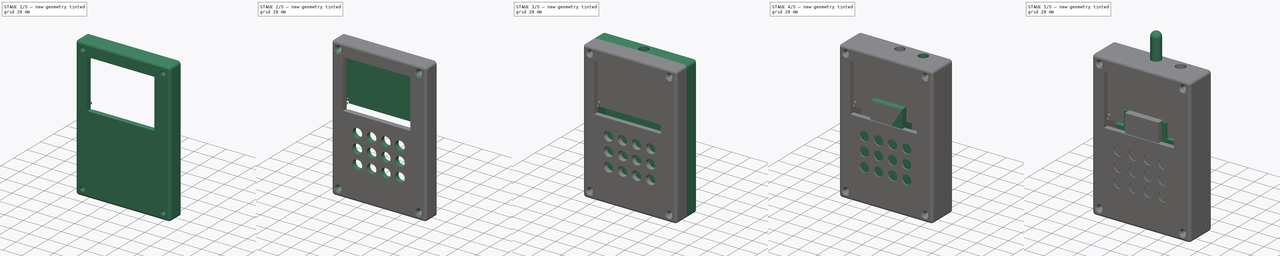
[diagram: build sequence overview — one tinted view per stage of 5, left to right]
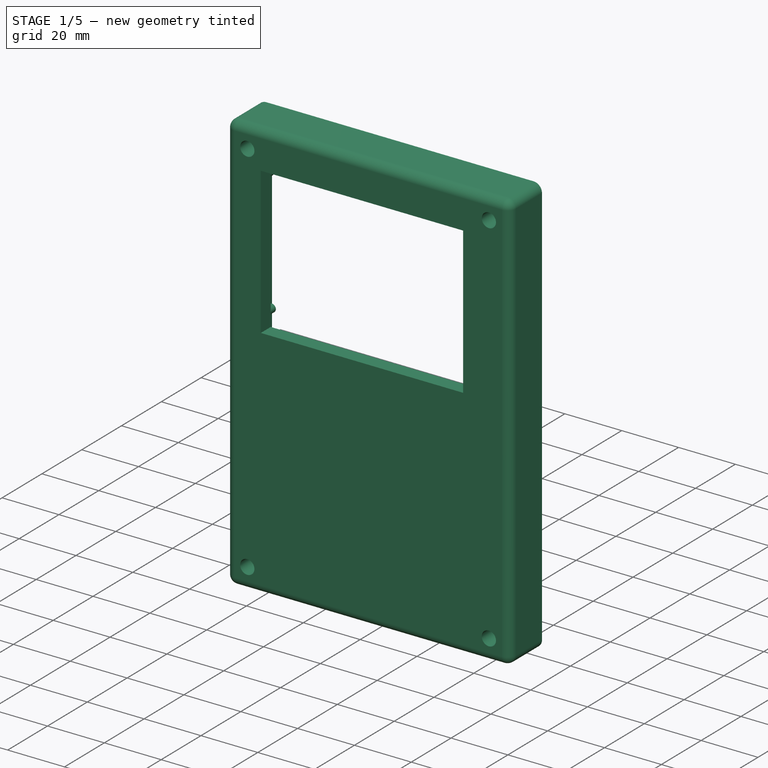
[diagram: stage 1 of 5 — iso view after this stage's code; geometry added in this stage tinted green]
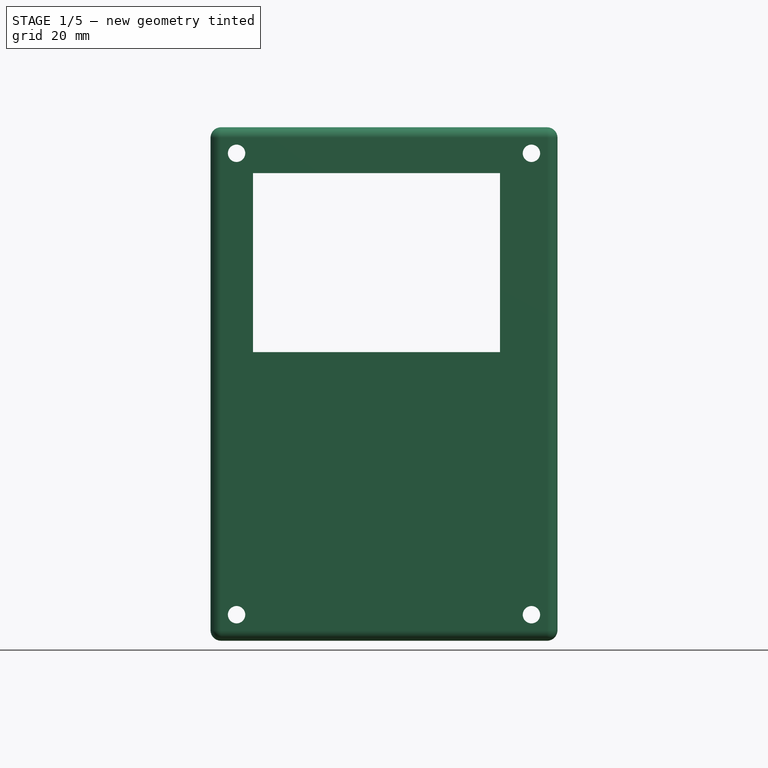
[diagram: stage 1 of 5 — front view after this stage's code; geometry added in this stage tinted green]
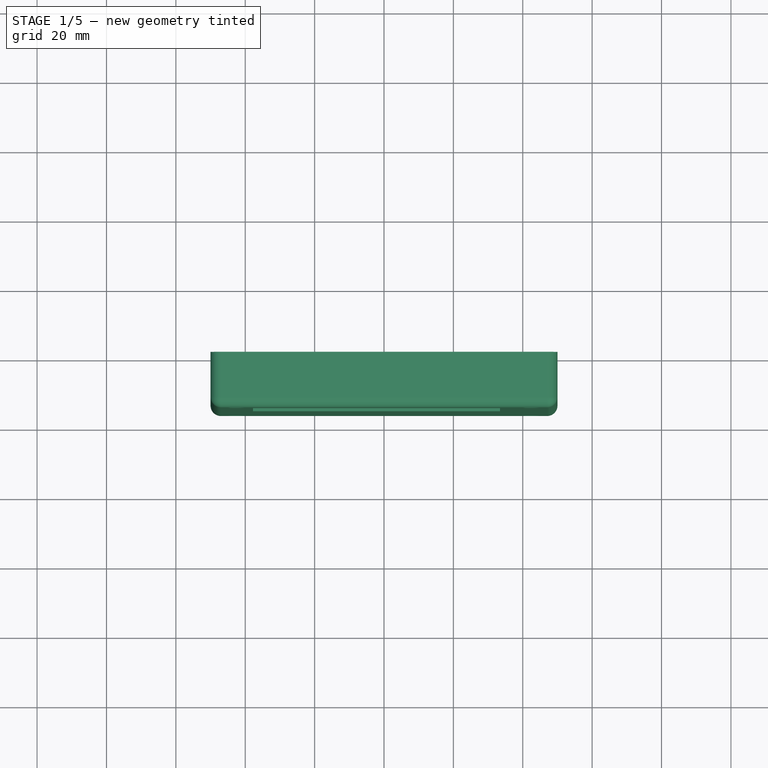
[diagram: stage 1 of 5 — top view after this stage's code; geometry added in this stage tinted green]
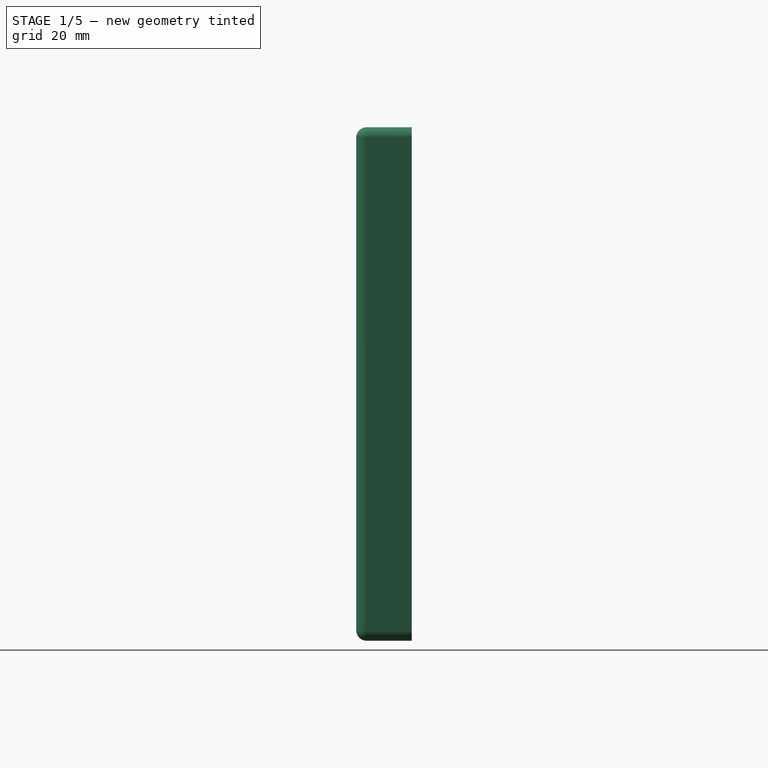
[diagram: stage 1 of 5 — right view after this stage's code; geometry added in this stage tinted green]
FCSTD DOCUMENT  (FreeCAD 0.19R24267 +99 (Git))
Label: Enclosure_print
License: All rights reserved
LicenseURL: http://en.wikipedia.org/wiki/All_rights_reserved
objects: Sketcher::SketchObject×26, PartDesign::Pad×13, PartDesign::Pocket×13, PartDesign::Body×10, PartDesign::Fillet×3, Spreadsheet::Sheet×1, PartDesign::Chamfer×1
note: 96 computed .brp shape members not serialized (recipe doc carries the construction recipe); baked Part::Feature solids carry a one-line shape summary decoded from their .brp

FEATURE [Sketcher::SketchObject] Sketch
  FullyConstrained = true
  MapMode = 5
  Placement = pos=(0,0,0) rot=(1,0,0;1.5708rad)
  Support = -> [XZ_Plane001]
  expr: Constraints[10] = Spreadsheet.enc_length
  expr: Constraints[9] = Spreadsheet.enc_width
  sketch-geometry (4):
    g0: LineSegment StartX=-50 StartY=74 StartZ=0 EndX=50 EndY=74 EndZ=0
    g1: LineSegment StartX=50 StartY=74 StartZ=0 EndX=50 EndY=-74 EndZ=0
    g2: LineSegment StartX=50 StartY=-74 StartZ=0 EndX=-50 EndY=-74 EndZ=0
    g3: LineSegment StartX=-50 StartY=-74 StartZ=0 EndX=-50 EndY=74 EndZ=0
  constraints (11):
    c: Coincident(g0,g1)
    c: Coincident(g1,g2)
    c: Coincident(g2,g3)
    c: Coincident(g3,g0)
    c: Horizontal(g0)
    c: Horizontal(g2)
    c: Vertical(g1)
    c: Vertical(g3)
    c: Symmetric(g0,g1,g-1)
    c: DistanceX(g0,g0) = 100
    c: DistanceY(g1,g1) = 148
FEATURE [Sketcher::SketchObject] Sketch001
  FullyConstrained = true
  MapMode = 5
  Placement = pos=(0,0,0) rot=(1,0,0;1.5708rad)
  Support = -> [XZ_Plane002]
  expr: Constraints[10] = Spreadsheet.enc_length
  expr: Constraints[9] = Spreadsheet.enc_width
  sketch-geometry (4):
    g0: LineSegment StartX=-50 StartY=74 StartZ=0 EndX=50 EndY=74 EndZ=0
    g1: LineSegment StartX=50 StartY=74 StartZ=0 EndX=50 EndY=-74 EndZ=0
    g2: LineSegment StartX=50 StartY=-74 StartZ=0 EndX=-50 EndY=-74 EndZ=0
    g3: LineSegment StartX=-50 StartY=-74 StartZ=0 EndX=-50 EndY=74 EndZ=0
  constraints (11):
    c: Coincident(g0,g1)
    c: Coincident(g1,g2)
    c: Coincident(g2,g3)
    c: Coincident(g3,g0)
    c: Horizontal(g0)
    c: Horizontal(g2)
    c: Vertical(g1)
    c: Vertical(g3)
    c: Symmetric(g0,g1,g-1)
    c: DistanceX(g0,g0) = 100
    c: DistanceY(g1,g1) = 148
FEATURE [PartDesign::Pad] Pad
  Direction = (1,1,1)
  Length = 16
  Length2 = 100
  Placement = pos=(0,0,0) rot=(1,0,0;1.5708rad)
  Profile = -> Sketch
  Type = 0
FEATURE [Sketcher::SketchObject] Sketch002
  FullyConstrained = true
  MapMode = 5
  Placement = pos=(0,0,0) rot=(1,0,0;1.5708rad)
  Support = -> [XZ_Plane001]
  expr: Constraints[9] = 51.6mm
  expr: Constraints[8] = Spreadsheet.lcdpcb_length - Spreadsheet.lcd_rmargin - Spreadsheet.lcd_lmargin + 1.5
  expr: Constraints[12] = (Spreadsheet.lcd_rmargin - Spreadsheet.lcd_lmargin) / 2
  sketch-geometry (5):
    g0: LineSegment StartX=-37.75 StartY=60.8 StartZ=0 EndX=33.45 EndY=60.8 EndZ=0
    g1: LineSegment StartX=33.45 StartY=60.8 StartZ=0 EndX=33.45 EndY=9.2 EndZ=0
    g2: LineSegment StartX=33.45 StartY=9.2 StartZ=0 EndX=-37.75 EndY=9.2 EndZ=0
    g3: LineSegment StartX=-37.75 StartY=9.2 StartZ=0 EndX=-37.75 EndY=60.8 EndZ=0
    g4: GeomPoint X=-2.15 Y=35 Z=0
  constraints (13):
    c: Coincident(g0,g1)
    c: Coincident(g1,g2)
    c: Coincident(g2,g3)
    c: Coincident(g3,g0)
    c: Horizontal(g0)
    c: Horizontal(g2)
    c: Vertical(g1)
    c: Vertical(g3)
    c: DistanceX(g0,g0) = 71.2
    c: DistanceY(g1,g1) = 51.6
    c: Symmetric(g0,g1,g4)
    c: DistanceY(g-1,g4) = 35
    c: DistanceX(g4,g-1) = 2.15
FEATURE [PartDesign::Pocket] Pocket
  BaseFeature = -> Pad
  Length = 16
  Length2 = 100
  Placement = pos=(0,0,0) rot=(1,0,0;1.5708rad)
  Profile = -> Sketch002
  Reversed = true
  Type = 0
FEATURE [Spreadsheet::Sheet] Spreadsheet
  cells = A1=enc_width; B1(enc_width)=100; A2=enc_length; B2(enc_length)=148; A3=enc_height; B3(enc_height)=32; A4=enc_thick; B4(enc_thick)=5; A5=lcd_width; B5(lcd_width)=50.1; A6=lcd_length; B6(lcd_length)=69.2; A7=lcd_height; B7(lcd_height)=3.6; A8=lcdpcb_width; B8(lcdpcb_width)=50.1; A9=lcdpcb_length; B9(lcdpcb_length)=86; A10=lcdpcb_height; B10(lcdpcb_height)=4.9; A11=lcd_rmargin; B11(lcd_rmargin)=10.3; A12=lcd_lmargin; B12(lcd_lmargin)=6; A13=uc_mount_length; B13(uc_mount_length)=54.6011; A14=uc_mount_width; B14(uc_mount_width)=43.18; A15=uc_length; B15(uc_length)=66.04000000000001; A16=uc_width; B16(uc_width)=53.34
FEATURE [Sketcher::SketchObject] Sketch003
  FullyConstrained = true
  MapMode = 5
  Placement = pos=(0,0,0) rot=(1,0,0;1.5708rad)
  Support = -> [XZ_Plane001]
  sketch-geometry (8):
    g0: ArcOfCircle CenterX=45 CenterY=69 CenterZ=0 NormalX=0 NormalY=0 NormalZ=1 AngleXU=0 Radius=8 StartAngle=3.14159 EndAngle=4.71239
    g1: ArcOfCircle CenterX=-45 CenterY=69 CenterZ=0 NormalX=0 NormalY=0 NormalZ=1 AngleXU=0 Radius=8 StartAngle=4.71239 EndAngle=6.28319
    g2: ArcOfCircle CenterX=-45 CenterY=-69 CenterZ=0 NormalX=0 NormalY=0 NormalZ=1 AngleXU=0 Radius=8 StartAngle=3.75337e-06 EndAngle=1.57079
    g3: ArcOfCircle CenterX=45 CenterY=-69 CenterZ=0 NormalX=0 NormalY=0 NormalZ=1 AngleXU=0 Radius=8 StartAngle=1.5708 EndAngle=3.14159
    g4: LineSegment StartX=-37 StartY=69 StartZ=0 EndX=37 EndY=69 EndZ=0
    g5: LineSegment StartX=-37 StartY=-69 StartZ=0 EndX=37 EndY=-69 EndZ=0
    g6: LineSegment StartX=45 StartY=-61 StartZ=0 EndX=45 EndY=61 EndZ=0
    g7: LineSegment StartX=-45 StartY=61 StartZ=0 EndX=-45 EndY=-61 EndZ=0
  constraints (27):
    c: Radius(g0) = 8
    c: Equal(g0,g1)
    c: Equal(g1,g2)
    c: Equal(g2,g3)
    c: Coincident(g4,g1)
    c: Coincident(g4,g0)
    c: Horizontal(g4)
    c: Coincident(g5,g2)
    c: Coincident(g5,g3)
    c: Coincident(g6,g3)
    c: Coincident(g6,g0)
    c: Vertical(g6)
    c: Coincident(g7,g1)
    c: Coincident(g7,g2)
    c: Vertical(g7)
    c: Horizontal(g5)
    c: Vertical(g0,g3)
    c: Vertical(g1,g2)
    c: Horizontal(g1,g0)
    c: Horizontal(g2,g3)
    c: DistanceX(g1,g0) = 90
    c: DistanceY(g3,g0) = 138
    c: Equal(g7,g6)
    c: Equal(g4,g5)
    c: Vertical(g0,g0)
    c: Horizontal(g0,g0)
    c: Symmetric(g0,g2,g-1)
FEATURE [PartDesign::Pocket] Pocket001
  BaseFeature = -> Pocket
  Length = 11
  Length2 = 100
  Placement = pos=(0,0,0) rot=(1,0,0;1.5708rad)
  Profile = -> Sketch003
  Reversed = true
  Type = 0
  expr: Length = Spreadsheet.enc_height / 2 - Spreadsheet.enc_thick
FEATURE [Sketcher::SketchObject] Sketch012
  FullyConstrained = true
  MapMode = 5
  Placement = pos=(0,-16,1.06e-14) rot=(1,0,0;1.5708rad)
  Support = -> [Pocket001]
  expr: Constraints[5] = 2.5mm
  expr: Constraints[9] = Spreadsheet.enc_length / 2 - Spreadsheet.enc_thick * 1.5
  expr: Constraints[8] = Spreadsheet.enc_width / 2 - Spreadsheet.enc_thick * 1.5
  sketch-geometry (4):
    g0: Circle CenterX=42.5 CenterY=66.5 CenterZ=0 NormalX=0 NormalY=0 NormalZ=1 AngleXU=0 Radius=2.5
    g1: Circle CenterX=-42.5 CenterY=66.5 CenterZ=0 NormalX=0 NormalY=0 NormalZ=1 AngleXU=0 Radius=2.5
    g2: Circle CenterX=-42.5 CenterY=-66.5 CenterZ=0 NormalX=0 NormalY=0 NormalZ=1 AngleXU=0 Radius=2.5
    g3: Circle CenterX=42.5 CenterY=-66.5 CenterZ=0 NormalX=0 NormalY=0 NormalZ=1 AngleXU=0 Radius=2.5
  constraints (10):
    c: Equal(g0,g1)
    c: Equal(g1,g2)
    c: Equal(g2,g3)
    c: Symmetric(g0,g2,g-1)
    c: Symmetric(g1,g3,g-1)
    c: Radius(g0) = 2.5
    c: Horizontal(g1,g0)
    c: Vertical(g0,g3)
    c: DistanceX(g-1,g0) = 42.5
    c: DistanceY(g-1,g0) = 66.5
FEATURE [PartDesign::Pocket] Pocket007
  BaseFeature = -> Pocket001
  Length = 16
  Length2 = 100
  Placement = pos=(0,0,0) rot=(1,0,0;1.5708rad)
  Profile = -> Sketch012
  Type = 0
  expr: Length = Spreadsheet.enc_height / 2
FEATURE [PartDesign::Body] Body001  label="Back"
  Group = -> [Sketch001,Pad001,Sketch004,Pocket002,Sketch010,Pocket005,Sketch011,Pocket006,Fillet001,Sketch013,Pocket008,Sketch018,Pocket009,Sketch024,Pocket011]
  Origin = -> Origin002
  Placement = pos=(-103,-16,0) rot=(0,0,1;0rad)
  Tip = -> Pocket011
  expr: .Placement.Base.y = -Spreadsheet.enc_height / 2
FEATURE [PartDesign::Fillet] Fillet
  Base = -> Pocket007 [Edge8,Edge5,Edge10,Edge7,Edge4,Edge1,Edge2,Edge24]
  BaseFeature = -> Pocket007
  Placement = pos=(0,0,0) rot=(1,0,0;1.5708rad)
  Radius = 3
  SupportTransform = false
FEATURE [PartDesign::Body] Body002  label="LCD"
  Group = -> [Sketch005,Pad002,Sketch007,Pocket003,Sketch008,Pocket004,Sketch025,Pocket012]
  Origin = -> Origin
  Placement = pos=(0,-7.5,-4) rot=(0,0,1;0rad)
  Tip = -> Pocket012
  expr: .Placement.Base.y = -(Spreadsheet.enc_height / 2 - (Spreadsheet.lcdpcb_height + Spreadsheet.lcd_height))
FEATURE [Sketcher::SketchObject] Sketch026
  FullyConstrained = true
  MapMode = 5
  Placement = pos=(0,-11,-2.4e-15) rot=(-1,0,0;1.5708rad)
  sketch-geometry (4):
    g0: Circle CenterX=-40.13 CenterY=-56.93 CenterZ=0 NormalX=0 NormalY=0 NormalZ=1 AngleXU=0 Radius=1.375
    g1: Circle CenterX=-40.13 CenterY=-13.08 CenterZ=0 NormalX=0 NormalY=0 NormalZ=1 AngleXU=0 Radius=1.375
    g2: Circle CenterX=36.12 CenterY=-13.08 CenterZ=0 NormalX=0 NormalY=0 NormalZ=1 AngleXU=0 Radius=1.375
    g3: Circle CenterX=36.12 CenterY=-56.93 CenterZ=0 NormalX=0 NormalY=0 NormalZ=1 AngleXU=0 Radius=1.375
  constraints (12):
    c: Equal(g3,g0)
    c: Equal(g0,g1)
    c: Equal(g1,g2)
    c: Diameter(g3) = 2.75
    c: Horizontal(g3,g0)
    c: Horizontal(g2,g1)
    c: Vertical(g0,g1)
    c: Vertical(g2,g3)
    c: DistanceX(g0,g3) = 76.25
    c: DistanceY(g0,g1) = 43.85
    c: DistanceX(g0,g-1) = 40.13
    c: DistanceY(g0,g-1) = 56.93
FEATURE [PartDesign::Pad] Pad012
  BaseFeature = -> Fillet
  Direction = (1,1,1)
  Length = 4
  Length2 = 100
  Placement = pos=(0,0,0) rot=(1,0,0;1.5708rad)
  Profile = -> Sketch026
  Type = 0
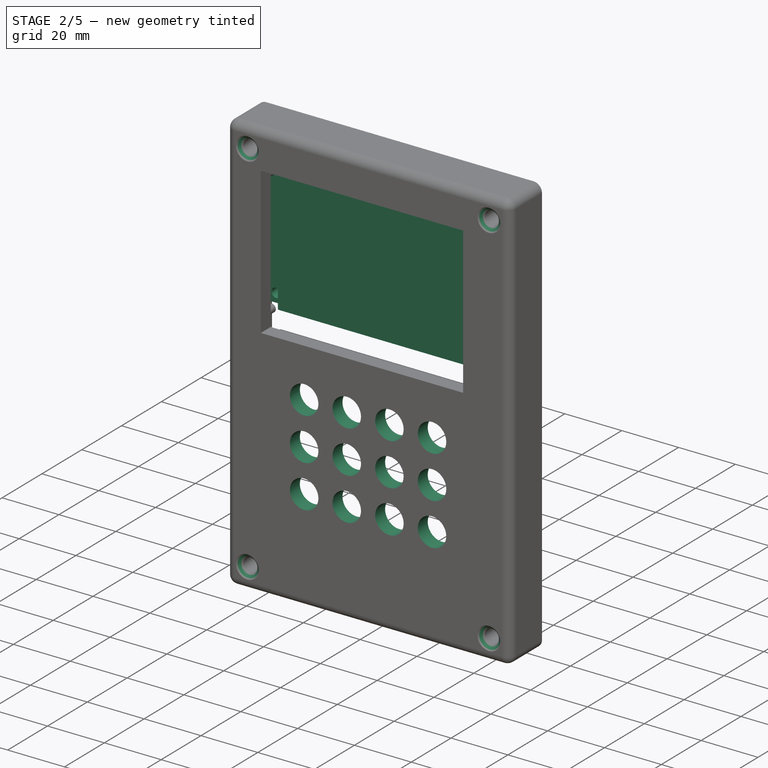
[diagram: stage 2 of 5 — iso view after this stage's code; geometry added in this stage tinted green]
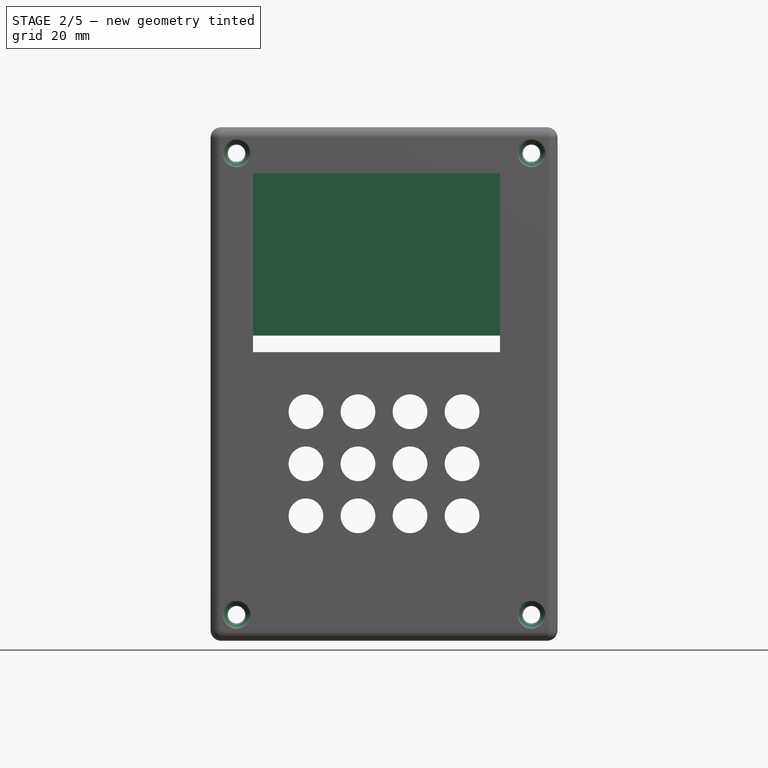
[diagram: stage 2 of 5 — front view after this stage's code; geometry added in this stage tinted green]
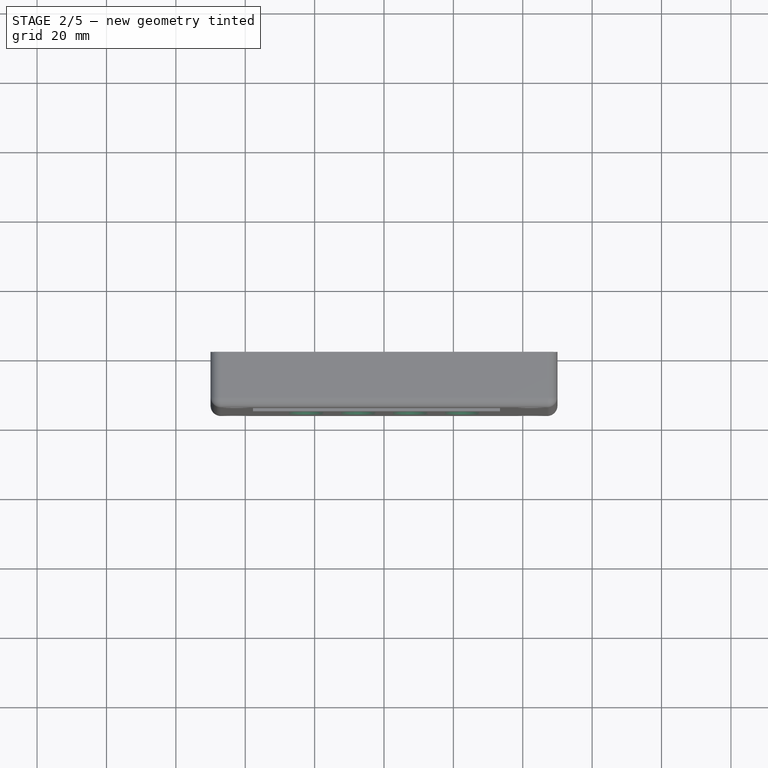
[diagram: stage 2 of 5 — top view after this stage's code; geometry added in this stage tinted green]
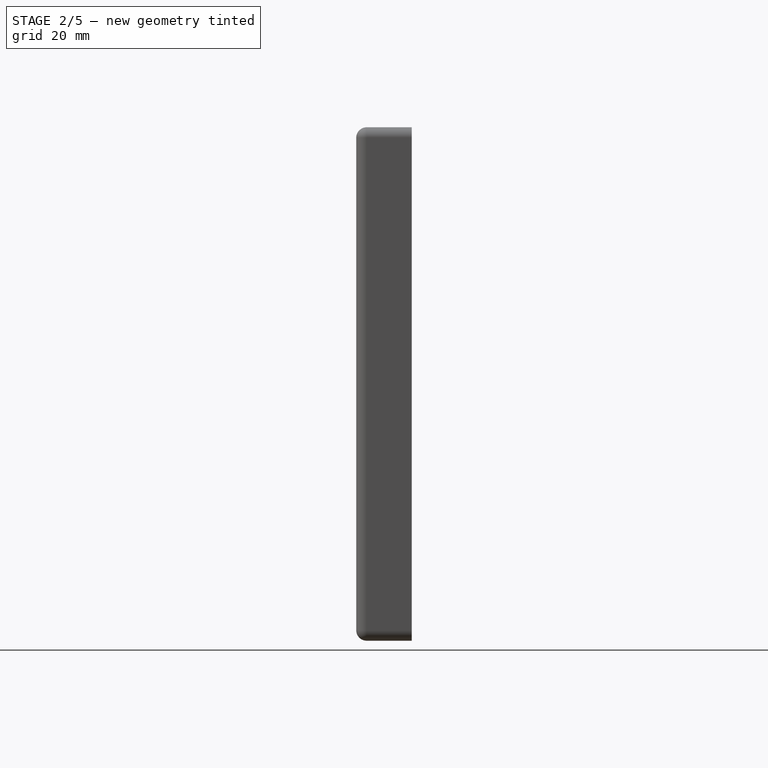
[diagram: stage 2 of 5 — right view after this stage's code; geometry added in this stage tinted green]
FEATURE [Sketcher::SketchObject] Sketch005
  FullyConstrained = true
  MapMode = 5
  Placement = pos=(0,0,0) rot=(1,0,0;1.5708rad)
  Support = -> [XZ_Plane]
  expr: Constraints[9] = Spreadsheet.lcdpcb_width
  expr: Constraints[8] = Spreadsheet.lcdpcb_length
  sketch-geometry (5):
    g0: LineSegment StartX=-43 StartY=64.05 StartZ=0 EndX=43 EndY=64.05 EndZ=0
    g1: LineSegment StartX=43 StartY=64.05 StartZ=0 EndX=43 EndY=13.95 EndZ=0
    g2: LineSegment StartX=43 StartY=13.95 StartZ=0 EndX=-43 EndY=13.95 EndZ=0
    g3: LineSegment StartX=-43 StartY=13.95 StartZ=0 EndX=-43 EndY=64.05 EndZ=0
    g4: GeomPoint X=0 Y=39 Z=0
  constraints (13):
    c: Coincident(g0,g1)
    c: Coincident(g1,g2)
    c: Coincident(g2,g3)
    c: Coincident(g3,g0)
    c: Horizontal(g0)
    c: Horizontal(g2)
    c: Vertical(g1)
    c: Vertical(g3)
    c: DistanceX(g0,g0) = 86
    c: DistanceY(g1,g1) = 50.1
    c: PointOnObject(g4,g-2)
    c: Symmetric(g0,g1,g4)
    c: DistanceY(g-1,g4) = 39
FEATURE [PartDesign::Pad] Pad002
  Direction = (1,1,1)
  Length = 8.5
  Length2 = 100
  Placement = pos=(0,0,0) rot=(1,0,0;1.5708rad)
  Profile = -> Sketch005
  Type = 0
FEATURE [Sketcher::SketchObject] Sketch007
  ExternalGeometry = -> [Pad002]
  FullyConstrained = true
  MapMode = 5
  Placement = pos=(0,-8.5,3.8e-15) rot=(1,0,0;1.5708rad)
  Support = -> [Pad002]
  expr: Constraints[9] = Spreadsheet.lcd_width
  expr: Constraints[8] = Spreadsheet.lcd_rmargin
  sketch-geometry (4):
    g0: LineSegment StartX=32.7 StartY=64.05 StartZ=0 EndX=43 EndY=64.05 EndZ=0
    g1: LineSegment StartX=43 StartY=64.05 StartZ=0 EndX=43 EndY=13.95 EndZ=0
    g2: LineSegment StartX=43 StartY=13.95 StartZ=0 EndX=32.7 EndY=13.95 EndZ=0
    g3: LineSegment StartX=32.7 StartY=13.95 StartZ=0 EndX=32.7 EndY=64.05 EndZ=0
  constraints (11):
    c: Coincident(g0,g1)
    c: Coincident(g1,g2)
    c: Coincident(g2,g3)
    c: Coincident(g3,g0)
    c: Horizontal(g0)
    c: Horizontal(g2)
    c: Vertical(g1)
    c: Vertical(g3)
    c: DistanceX(g0,g0) = 10.3
    c: DistanceY(g1,g1) = 50.1
    c: Coincident(g1,g-3)
FEATURE [PartDesign::Pocket] Pocket003
  BaseFeature = -> Pad002
  Length = 3.6
  Length2 = 100
  Placement = pos=(0,0,0) rot=(1,0,0;1.5708rad)
  Profile = -> Sketch007
  Type = 0
  expr: Length = Spreadsheet.lcd_height
FEATURE [Sketcher::SketchObject] Sketch008
  ExternalGeometry = -> [Pocket003]
  FullyConstrained = true
  MapMode = 5
  Placement = pos=(0,-8.5,3.8e-15) rot=(1,0,0;1.5708rad)
  Support = -> [Pocket003]
  expr: Constraints[9] = Spreadsheet.lcd_lmargin
  expr: Constraints[8] = Spreadsheet.lcd_width
  sketch-geometry (4):
    g0: LineSegment StartX=-43 StartY=64.05 StartZ=0 EndX=-37 EndY=64.05 EndZ=0
    g1: LineSegment StartX=-37 StartY=64.05 StartZ=0 EndX=-37 EndY=13.95 EndZ=0
    g2: LineSegment StartX=-37 StartY=13.95 StartZ=0 EndX=-43 EndY=13.95 EndZ=0
    g3: LineSegment StartX=-43 StartY=13.95 StartZ=0 EndX=-43 EndY=64.05 EndZ=0
  constraints (11):
    c: Coincident(g0,g1)
    c: Coincident(g1,g2)
    c: Coincident(g2,g3)
    c: Coincident(g3,g0)
    c: Horizontal(g0)
    c: Horizontal(g2)
    c: Vertical(g1)
    c: Vertical(g3)
    c: DistanceY(g1,g1) = 50.1
    c: DistanceX(g0,g0) = 6
    c: Coincident(g2,g-3)
FEATURE [PartDesign::Pocket] Pocket004
  BaseFeature = -> Pocket003
  Length = 3.6
  Length2 = 100
  Placement = pos=(0,0,0) rot=(1,0,0;1.5708rad)
  Profile = -> Sketch008
  Type = 0
  expr: Length = Spreadsheet.lcd_height
FEATURE [Sketcher::SketchObject] Sketch025
  ExternalGeometry = -> [Pocket004]
  FullyConstrained = true
  MapMode = 5
  Placement = pos=(0,-8.5,3.8e-15) rot=(1,0,0;1.5708rad)
  Support = -> [Pocket004]
  sketch-geometry (4):
    g0: Circle CenterX=36.125 CenterY=60.925 CenterZ=0 NormalX=0 NormalY=0 NormalZ=1 AngleXU=0 Radius=1.625
    g1: Circle CenterX=36.125 CenterY=17.075 CenterZ=0 NormalX=0 NormalY=0 NormalZ=1 AngleXU=0 Radius=1.625
    g2: Circle CenterX=-40.125 CenterY=17.075 CenterZ=0 NormalX=0 NormalY=0 NormalZ=1 AngleXU=0 Radius=1.625
    g3: Circle CenterX=-40.125 CenterY=60.925 CenterZ=0 NormalX=0 NormalY=0 NormalZ=1 AngleXU=0 Radius=1.625
  constraints (12):
    c: Equal(g0,g1)
    c: Equal(g1,g2)
    c: Equal(g2,g3)
    c: Diameter(g0) = 3.25
    c: Horizontal(g0,g3)
    c: Vertical(g0,g1)
    c: Vertical(g3,g2)
    c: Horizontal(g2,g1)
    c: DistanceX(g0,g-3) = 6.875
    c: DistanceX(g3,g0) = 76.25
    c: DistanceY(g0,g-3) = 3.125
    c: DistanceY(g-3,g1) = 3.125
FEATURE [PartDesign::Pocket] Pocket012
  BaseFeature = -> Pocket004
  Length = 9
  Length2 = 100
  Placement = pos=(0,0,0) rot=(1,0,0;1.5708rad)
  Profile = -> Sketch025
  Type = 0
FEATURE [Sketcher::SketchObject] Sketch027
  FullyConstrained = true
  MapMode = 5
  Placement = pos=(0,-16,1.42e-14) rot=(1,0,0;1.5708rad)
  Support = -> [Pad012]
  sketch-geometry (23):
    g0: Circle CenterX=-22.5 CenterY=-8 CenterZ=0 NormalX=0 NormalY=0 NormalZ=1 AngleXU=0 Radius=5
    g1: Circle CenterX=-7.5 CenterY=-8 CenterZ=0 NormalX=0 NormalY=0 NormalZ=1 AngleXU=0 Radius=5
    g2: LineSegment StartX=-22.5 StartY=-8 StartZ=0 EndX=-7.5 EndY=-8 EndZ=0
    g3: Circle CenterX=7.5 CenterY=-8 CenterZ=0 NormalX=0 NormalY=0 NormalZ=1 AngleXU=0 Radius=5
    g4: LineSegment StartX=-7.5 StartY=-8 StartZ=0 EndX=7.5 EndY=-8 EndZ=0
    g5: Circle CenterX=22.5 CenterY=-8 CenterZ=0 NormalX=0 NormalY=0 NormalZ=1 AngleXU=0 Radius=5
    g6: LineSegment StartX=7.5 StartY=-8 StartZ=0 EndX=22.5 EndY=-8 EndZ=0
    g7: Circle CenterX=-22.5 CenterY=-23 CenterZ=0 NormalX=0 NormalY=0 NormalZ=1 AngleXU=0 Radius=5
    g8: LineSegment StartX=-22.5 StartY=-8 StartZ=0 EndX=-22.5 EndY=-23 EndZ=0
    g9: Circle CenterX=-7.5 CenterY=-23 CenterZ=0 NormalX=0 NormalY=0 NormalZ=1 AngleXU=0 Radius=5
    g10: LineSegment StartX=-22.5 StartY=-23 StartZ=0 EndX=-7.5 EndY=-23 EndZ=0
    g11: Circle CenterX=7.5 CenterY=-23 CenterZ=0 NormalX=0 NormalY=0 NormalZ=1 AngleXU=0 Radius=5
    g12: LineSegment StartX=-7.5 StartY=-23 StartZ=0 EndX=7.5 EndY=-23 EndZ=0
    g13: Circle CenterX=22.5 CenterY=-23 CenterZ=0 NormalX=0 NormalY=0 NormalZ=1 AngleXU=0 Radius=5
    g14: LineSegment StartX=7.5 StartY=-23 StartZ=0 EndX=22.5 EndY=-23 EndZ=0
    g15: Circle CenterX=-22.5 CenterY=-38 CenterZ=0 NormalX=0 NormalY=0 NormalZ=1 AngleXU=0 Radius=5
    g16: LineSegment StartX=-22.5 StartY=-23 StartZ=0 EndX=-22.5 EndY=-38 EndZ=0
    g17: Circle CenterX=-7.5 CenterY=-38 CenterZ=0 NormalX=0 NormalY=0 NormalZ=1 AngleXU=0 Radius=5
    g18: LineSegment StartX=-22.5 StartY=-38 StartZ=0 EndX=-7.5 EndY=-38 EndZ=0
    g19: Circle CenterX=7.5 CenterY=-38 CenterZ=0 NormalX=0 NormalY=0 NormalZ=1 AngleXU=0 Radius=5
    g20: LineSegment StartX=-7.5 StartY=-38 StartZ=0 EndX=7.5 EndY=-38 EndZ=0
    g21: Circle CenterX=22.5 CenterY=-38 CenterZ=0 NormalX=0 NormalY=0 NormalZ=1 AngleXU=0 Radius=5
    g22: LineSegment StartX=7.5 StartY=-38 StartZ=0 EndX=22.5 EndY=-38 EndZ=0
  constraints (58):
    c: Radius(g0) = 5
    c: Equal(g0,g1) = 5
    c: Coincident(g0,g2)
    c: Coincident(g1,g2)
    c: Distance(g2) = 15
    c: Equal(g0,g3) = 5
    c: Coincident(g1,g4)
    c: Coincident(g3,g4)
    c: Equal(g2,g4)
    c: Parallel(g4,g2)
    c: Equal(g0,g5) = 5
    c: Coincident(g3,g6)
    c: Coincident(g5,g6)
    c: Equal(g2,g6)
    c: Parallel(g6,g2)
    c: Equal(g0,g7) = 5
    c: Coincident(g0,g8)
    c: Coincident(g7,g8)
    c: Equal(g8,g2)
    c: Perpendicular(g8,g2)
    c: Equal(g0,g9) = 5
    c: Coincident(g7,g10)
    c: Coincident(g9,g10)
    c: Equal(g2,g10)
    c: Parallel(g10,g2)
    c: Equal(g0,g11) = 5
    c: Coincident(g9,g12)
    c: Coincident(g11,g12)
    c: Equal(g2,g12)
    c: Parallel(g12,g2)
    c: Equal(g0,g13) = 5
    c: Coincident(g11,g14)
    c: Coincident(g13,g14)
    c: Equal(g2,g14)
    c: Parallel(g14,g2)
    c: Equal(g0,g15) = 5
    c: Coincident(g7,g16)
    c: Coincident(g15,g16)
    c: Equal(g8,g16)
    c: Perpendicular(g16,g2)
    c: Equal(g0,g17) = 5
    c: Coincident(g15,g18)
    c: Coincident(g17,g18)
    c: Equal(g2,g18)
    c: Parallel(g18,g2)
    c: Equal(g0,g19) = 5
    c: Coincident(g17,g20)
    c: Coincident(g19,g20)
    c: Equal(g2,g20)
    c: Parallel(g20,g2)
    c: Equal(g0,g21) = 5
    c: Coincident(g19,g22)
    c: Coincident(g21,g22)
    c: Equal(g2,g22)
    c: Parallel(g22,g2)
    c: Horizontal(g4)
    c: DistanceX(g1,g-1) = 7.5
    c: DistanceY(g1,g-1) = 8
FEATURE [PartDesign::Pocket] Pocket013
  BaseFeature = -> Pad012
  Length = 5
  Length2 = 100
  Placement = pos=(0,0,0) rot=(1,0,0;1.5708rad)
  Profile = -> Sketch027
  Type = 0
FEATURE [PartDesign::Chamfer] Chamfer
  Angle = 45
  Base = -> Pocket013 [Edge63,Edge43,Edge41,Edge45]
  BaseFeature = -> Pocket013
  ChamferType = 0
  FlipDirection = false
  Placement = pos=(0,0,0) rot=(1,0,0;1.5708rad)
  Size = 1.5
  Size2 = 1
  SupportTransform = false
FEATURE [PartDesign::Body] Body  label="Front"
  Group = -> [Sketch,Pad,Sketch002,Pocket,Sketch003,Pocket001,Sketch012,Pocket007,Fillet,Sketch026,Pad012,Sketch027,Pocket013,Chamfer]
  Origin = -> Origin001
  Placement = pos=(0,-16,0) rot=(0,0,1;3.14159rad)
  Tip = -> Chamfer
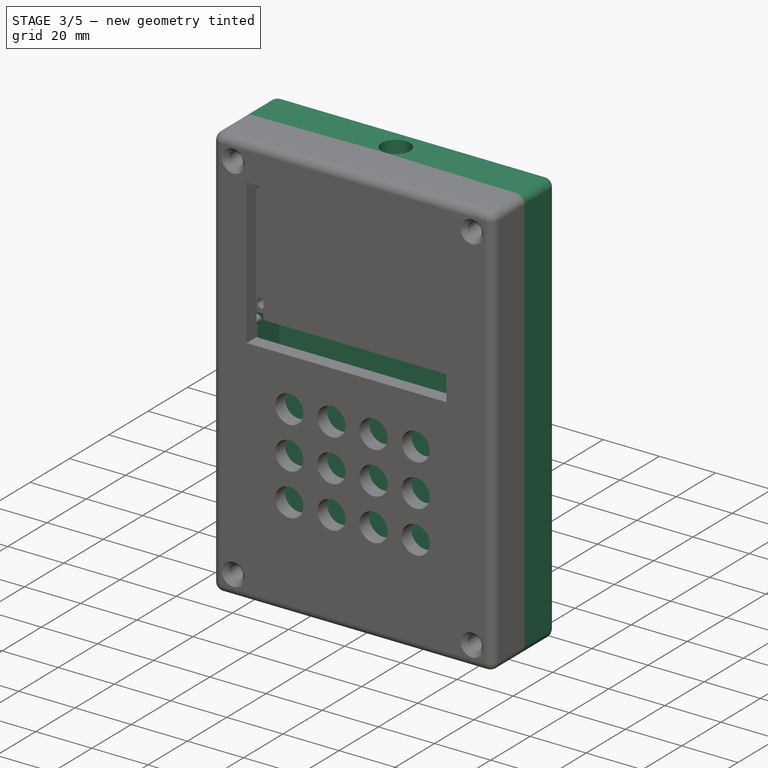
[diagram: stage 3 of 5 — iso view after this stage's code; geometry added in this stage tinted green]
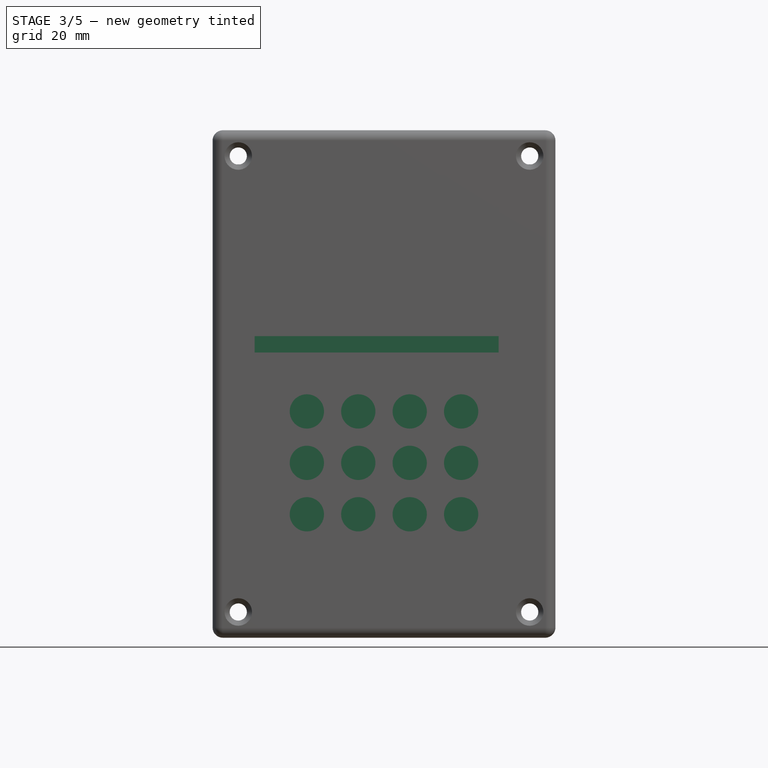
[diagram: stage 3 of 5 — front view after this stage's code; geometry added in this stage tinted green]
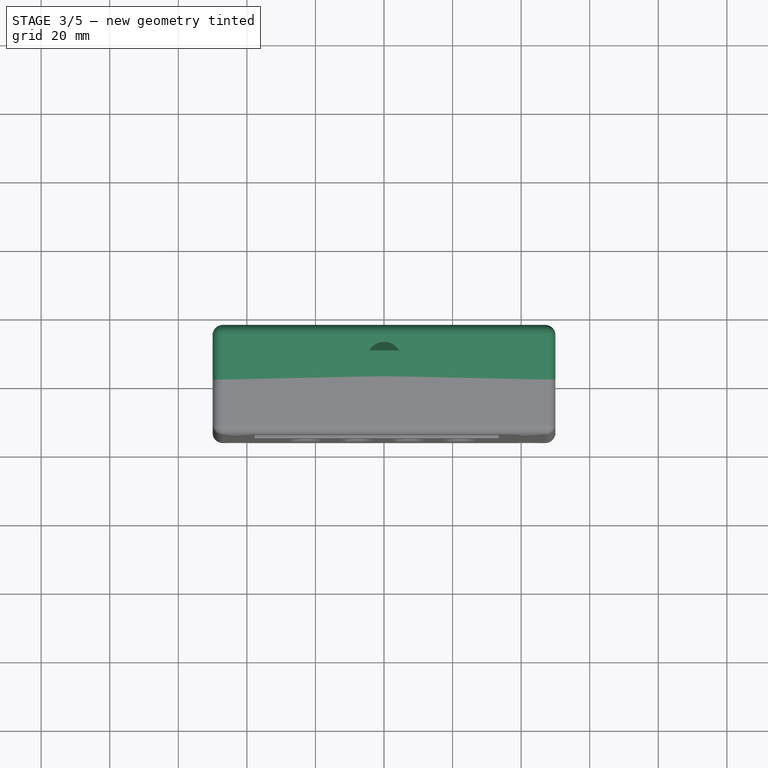
[diagram: stage 3 of 5 — top view after this stage's code; geometry added in this stage tinted green]
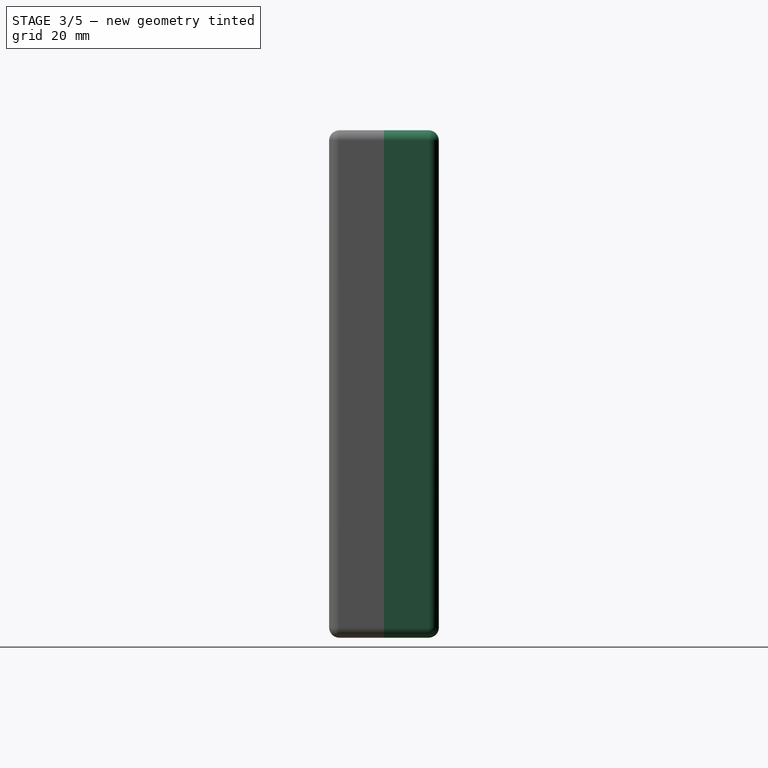
[diagram: stage 3 of 5 — right view after this stage's code; geometry added in this stage tinted green]
FEATURE [PartDesign::Pad] Pad001
  Direction = (1,1,1)
  Length = 16
  Length2 = 100
  Placement = pos=(0,0,0) rot=(1,0,0;1.5708rad)
  Profile = -> Sketch001
  Reversed = true
  Type = 0
FEATURE [Sketcher::SketchObject] Sketch004
  FullyConstrained = true
  MapMode = 5
  Placement = pos=(0,0,0) rot=(1,0,0;1.5708rad)
  Support = -> [XZ_Plane002]
  sketch-geometry (8):
    g0: ArcOfCircle CenterX=45 CenterY=69 CenterZ=0 NormalX=0 NormalY=0 NormalZ=1 AngleXU=0 Radius=8 StartAngle=3.14159 EndAngle=4.71239
    g1: ArcOfCircle CenterX=-45 CenterY=69 CenterZ=0 NormalX=0 NormalY=0 NormalZ=1 AngleXU=0 Radius=8 StartAngle=4.71239 EndAngle=6.28319
    g2: ArcOfCircle CenterX=-45 CenterY=-69 CenterZ=0 NormalX=0 NormalY=0 NormalZ=1 AngleXU=0 Radius=8 StartAngle=6.28319 EndAngle=7.85398
    g3: ArcOfCircle CenterX=45 CenterY=-69 CenterZ=0 NormalX=0 NormalY=0 NormalZ=1 AngleXU=0 Radius=8 StartAngle=1.5708 EndAngle=3.14159
    g4: LineSegment StartX=45 StartY=61 StartZ=0 EndX=45 EndY=-61 EndZ=0
    g5: LineSegment StartX=37 StartY=-69 StartZ=0 EndX=-37 EndY=-69 EndZ=0
    g6: LineSegment StartX=-45 StartY=-61 StartZ=0 EndX=-45 EndY=61 EndZ=0
    g7: LineSegment StartX=-37 StartY=69 StartZ=0 EndX=37 EndY=69 EndZ=0
  constraints (27):
    c: Coincident(g4,g0)
    c: Coincident(g4,g3)
    c: Vertical(g4)
    c: Coincident(g5,g3)
    c: Coincident(g5,g2)
    c: Horizontal(g5)
    c: Coincident(g6,g2)
    c: Coincident(g6,g1)
    c: Vertical(g6)
    c: Coincident(g7,g1)
    c: Coincident(g7,g0)
    c: Horizontal(g7)
    c: Radius(g0) = 8
    c: Equal(g0,g1)
    c: Equal(g1,g2)
    c: Equal(g2,g3)
    c: Vertical(g0,g3)
    c: Vertical(g1,g2)
    c: Horizontal(g1,g0)
    c: Horizontal(g3,g2)
    c: DistanceX(g1,g0) = 90
    c: DistanceY(g3,g0) = 138
    c: Equal(g7,g5)
    c: Equal(g4,g6)
    c: Vertical(g0,g0)
    c: Horizontal(g0,g0)
    c: Symmetric(g0,g2,g-1)
FEATURE [PartDesign::Pocket] Pocket002
  BaseFeature = -> Pad001
  Length = 11
  Length2 = 100
  Placement = pos=(0,0,0) rot=(1,0,0;1.5708rad)
  Profile = -> Sketch004
  Type = 0
  expr: Length = Spreadsheet.enc_height / 2 - Spreadsheet.enc_thick
FEATURE [PartDesign::Body] Body003  label="Microcontroller"
  Group = -> [Sketch009,Pad003]
  Origin = -> Origin003
  Placement = pos=(-18,11,-40) rot=(0,0,1;0rad)
  Tip = -> Pad003
FEATURE [Sketcher::SketchObject] Sketch010
  FullyConstrained = true
  MapMode = 5
  Placement = pos=(0,16,-1.8e-15) rot=(-1,0,0;1.5708rad)
  Support = -> [Pocket002]
  expr: Constraints[81] = Spreadsheet.enc_length / 2 - Spreadsheet.enc_thick * 1.5
  expr: Constraints[80] = Spreadsheet.enc_width / 2 - Spreadsheet.enc_thick * 1.5
  sketch-geometry (28):
    g0: LineSegment StartX=-47.1188 StartY=-66.5 StartZ=0 EndX=-44.8094 EndY=-70.5 EndZ=0
    g1: LineSegment StartX=-44.8094 StartY=-70.5 StartZ=0 EndX=-40.1906 EndY=-70.5 EndZ=0
    g2: LineSegment StartX=-40.1906 StartY=-70.5 StartZ=0 EndX=-37.8812 EndY=-66.5 EndZ=0
    g3: LineSegment StartX=-37.8812 StartY=-66.5 StartZ=0 EndX=-40.1906 EndY=-62.5 EndZ=0
    g4: LineSegment StartX=-40.1906 StartY=-62.5 StartZ=0 EndX=-44.8094 EndY=-62.5 EndZ=0
    g5: LineSegment StartX=-44.8094 StartY=-62.5 StartZ=0 EndX=-47.1188 EndY=-66.5 EndZ=0
    g6: Circle CenterX=-42.5 CenterY=-66.5 CenterZ=0 NormalX=0 NormalY=0 NormalZ=1 AngleXU=0 Radius=4.6188
    g7: LineSegment StartX=37.8812 StartY=-66.5 StartZ=0 EndX=40.1906 EndY=-70.5 EndZ=0
    g8: LineSegment StartX=40.1906 StartY=-70.5 StartZ=0 EndX=44.8094 EndY=-70.5 EndZ=0
    g9: LineSegment StartX=44.8094 StartY=-70.5 StartZ=0 EndX=47.1188 EndY=-66.5 EndZ=0
    g10: LineSegment StartX=47.1188 StartY=-66.5 StartZ=0 EndX=44.8094 EndY=-62.5 EndZ=0
    g11: LineSegment StartX=44.8094 StartY=-62.5 StartZ=0 EndX=40.1906 EndY=-62.5 EndZ=0
    g12: LineSegment StartX=40.1906 StartY=-62.5 StartZ=0 EndX=37.8812 EndY=-66.5 EndZ=0
    g13: Circle CenterX=42.5 CenterY=-66.5 CenterZ=0 NormalX=0 NormalY=0 NormalZ=1 AngleXU=0 Radius=4.6188
    g14: LineSegment StartX=37.8812 StartY=66.5 StartZ=0 EndX=40.1906 EndY=62.5 EndZ=0
    g15: LineSegment StartX=40.1906 StartY=62.5 StartZ=0 EndX=44.8094 EndY=62.5 EndZ=0
    g16: LineSegment StartX=44.8094 StartY=62.5 StartZ=0 EndX=47.1188 EndY=66.5 EndZ=0
    g17: LineSegment StartX=47.1188 StartY=66.5 StartZ=0 EndX=44.8094 EndY=70.5 EndZ=0
    g18: LineSegment StartX=44.8094 StartY=70.5 StartZ=0 EndX=40.1906 EndY=70.5 EndZ=0
    g19: LineSegment StartX=40.1906 StartY=70.5 StartZ=0 EndX=37.8812 EndY=66.5 EndZ=0
    g20: Circle CenterX=42.5 CenterY=66.5 CenterZ=0 NormalX=0 NormalY=0 NormalZ=1 AngleXU=0 Radius=4.6188
    g21: LineSegment StartX=-47.1188 StartY=66.5 StartZ=0 EndX=-44.8094 EndY=62.5 EndZ=0
    g22: LineSegment StartX=-44.8094 StartY=62.5 StartZ=0 EndX=-40.1906 EndY=62.5 EndZ=0
    g23: LineSegment StartX=-40.1906 StartY=62.5 StartZ=0 EndX=-37.8812 EndY=66.5 EndZ=0
    g24: LineSegment StartX=-37.8812 StartY=66.5 StartZ=0 EndX=-40.1906 EndY=70.5 EndZ=0
    g25: LineSegment StartX=-40.1906 StartY=70.5 StartZ=0 EndX=-44.8094 EndY=70.5 EndZ=0
    g26: LineSegment StartX=-44.8094 StartY=70.5 StartZ=0 EndX=-47.1188 EndY=66.5 EndZ=0
    g27: Circle CenterX=-42.5 CenterY=66.5 CenterZ=0 NormalX=0 NormalY=0 NormalZ=1 AngleXU=0 Radius=4.6188
  constraints (66):
    c: Coincident(g0,g1)
    c: Coincident(g1,g2)
    c: Coincident(g2,g3)
    c: Coincident(g3,g4)
    c: Coincident(g4,g5)
    c: Coincident(g5,g0)
    c: Equal(g0, g1-g5) x5
    c: PointOnObject(g0,g6)
    c: PointOnObject(g1,g6)
    c: PointOnObject(g2,g6)
    c: PointOnObject(g3,g6)
    c: PointOnObject(g4,g6)
    c: PointOnObject(g5,g6)
    c: Perpendicular(g-2,g1)
    c: DistanceY(g0,g4) = 8
    c: Coincident(g7,g8)
    c: Coincident(g8,g9)
    c: Coincident(g9,g10)
    c: Coincident(g10,g11)
    c: Coincident(g11,g12)
    c: Coincident(g12,g7)
    c: Equal(g7, g8-g12) x5
    c: PointOnObject(g7,g13)
    c: PointOnObject(g8,g13)
    c: PointOnObject(g9,g13)
    c: PointOnObject(g10,g13)
    c: PointOnObject(g11,g13)
    c: PointOnObject(g12,g13)
    c: DistanceY(g7,g11) = 8
    c: Coincident(g14,g15)
    c: Coincident(g15,g16)
    c: Coincident(g16,g17)
    c: Coincident(g17,g18)
    c: Coincident(g18,g19)
    c: Coincident(g19,g14)
    c: Equal(g14, g15-g19) x5
    c: PointOnObject(g14,g20)
    c: PointOnObject(g15,g20)
    c: PointOnObject(g16,g20)
    c: PointOnObject(g17,g20)
    c: PointOnObject(g18,g20)
    c: PointOnObject(g19,g20)
    c: DistanceY(g14,g18) = 8
    c: Coincident(g21,g22)
    c: Coincident(g22,g23)
    c: Coincident(g23,g24)
    c: Coincident(g24,g25)
    c: Coincident(g25,g26)
    c: Coincident(g26,g21)
    c: Equal(g21, g22-g26) x5
    c: PointOnObject(g21,g27)
    c: PointOnObject(g22,g27)
    c: PointOnObject(g23,g27)
    c: PointOnObject(g24,g27)
    c: PointOnObject(g25,g27)
    c: PointOnObject(g26,g27)
    c: DistanceY(g21,g25) = 8
    c: Symmetric(g27,g13,g-1)
    c: Symmetric(g20,g6,g-1)
    c: Perpendicular(g-2,g8)
    c: Perpendicular(g-2,g15)
    c: Perpendicular(g-2,g22)
    c: Horizontal(g27,g20)
    c: Vertical(g6,g27)
    c: DistanceX(g6,g-1) = 42.5
    c: DistanceY(g6,g-1) = 66.5
FEATURE [PartDesign::Pocket] Pocket005
  BaseFeature = -> Pocket002
  Length = 3
  Length2 = 100
  Placement = pos=(0,0,0) rot=(1,0,0;1.5708rad)
  Profile = -> Sketch010
  Type = 0
FEATURE [Sketcher::SketchObject] Sketch011
  FullyConstrained = true
  MapMode = 5
  Placement = pos=(0,16,-3.6e-15) rot=(-1,0,0;1.5708rad)
  Support = -> [Pocket005]
  expr: Constraints[9] = Spreadsheet.enc_length / 2 - Spreadsheet.enc_thick * 1.5
  expr: Constraints[8] = Spreadsheet.enc_width / 2 - Spreadsheet.enc_thick * 1.5
  sketch-geometry (4):
    g0: Circle CenterX=42.5 CenterY=66.5 CenterZ=0 NormalX=0 NormalY=0 NormalZ=1 AngleXU=0 Radius=2.5
    g1: Circle CenterX=-42.5 CenterY=66.5 CenterZ=0 NormalX=0 NormalY=0 NormalZ=1 AngleXU=0 Radius=2.5
    g2: Circle CenterX=-42.5 CenterY=-66.5 CenterZ=0 NormalX=0 NormalY=0 NormalZ=1 AngleXU=0 Radius=2.5
    g3: Circle CenterX=42.5 CenterY=-66.5 CenterZ=0 NormalX=0 NormalY=0 NormalZ=1 AngleXU=0 Radius=2.5
  constraints (10):
    c: Equal(g0,g1)
    c: Equal(g1,g2)
    c: Equal(g2,g3)
    c: Radius(g0) = 2.5
    c: Symmetric(g1,g3,g-1)
    c: Symmetric(g2,g0,g-1)
    c: Horizontal(g0,g1)
    c: Vertical(g0,g3)
    c: DistanceX(g-1,g0) = 42.5
    c: DistanceY(g-1,g0) = 66.5
FEATURE [PartDesign::Pocket] Pocket006
  BaseFeature = -> Pocket005
  Length = 16
  Length2 = 100
  Placement = pos=(0,0,0) rot=(1,0,0;1.5708rad)
  Profile = -> Sketch011
  Type = 0
  expr: Length = Spreadsheet.enc_height / 2
FEATURE [PartDesign::Fillet] Fillet001
  Base = -> Pocket006 [Edge4,Edge10,Edge2,Edge1,Edge7,Edge8,Edge5,Edge24]
  BaseFeature = -> Pocket006
  Placement = pos=(0,0,0) rot=(1,0,0;1.5708rad)
  Radius = 3
  SupportTransform = false
FEATURE [Sketcher::SketchObject] Sketch013
  FullyConstrained = true
  MapMode = 5
  Placement = pos=(0,4.11e-14,74) rot=(0,0,1;3.14159rad)
  Support = -> [Fillet001]
  sketch-geometry (1):
    g0: Circle CenterX=0 CenterY=-6 CenterZ=0 NormalX=0 NormalY=0 NormalZ=1 AngleXU=0 Radius=5
  constraints (3):
    c: PointOnObject(g0,g-2)
    c: Radius(g0) = 5
    c: DistanceY(g0,g-1) = 6
FEATURE [PartDesign::Pocket] Pocket008
  BaseFeature = -> Fillet001
  Length = 5
  Length2 = 100
  Placement = pos=(0,0,0) rot=(1,0,0;1.5708rad)
  Profile = -> Sketch013
  Type = 0
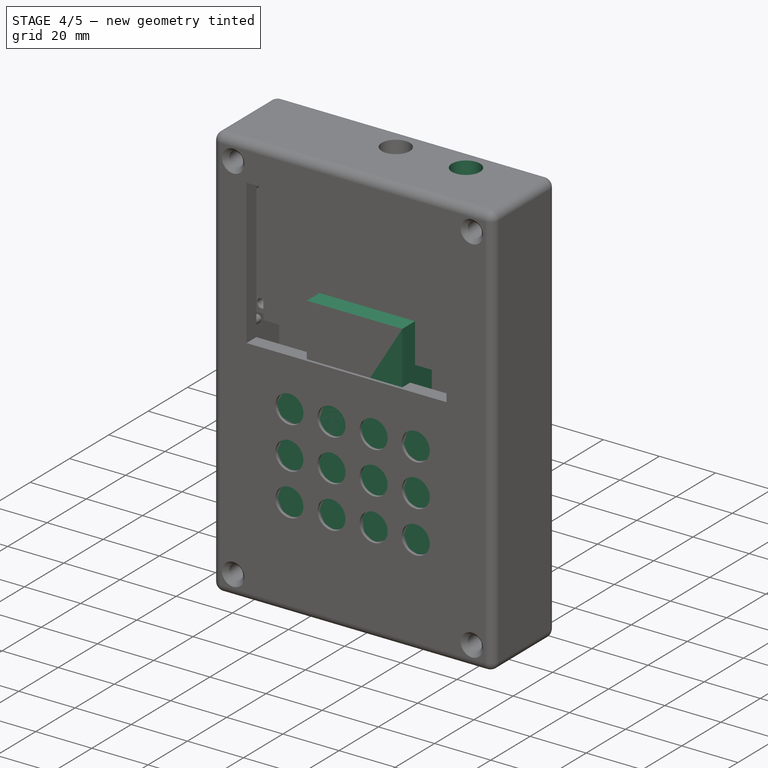
[diagram: stage 4 of 5 — iso view after this stage's code; geometry added in this stage tinted green]
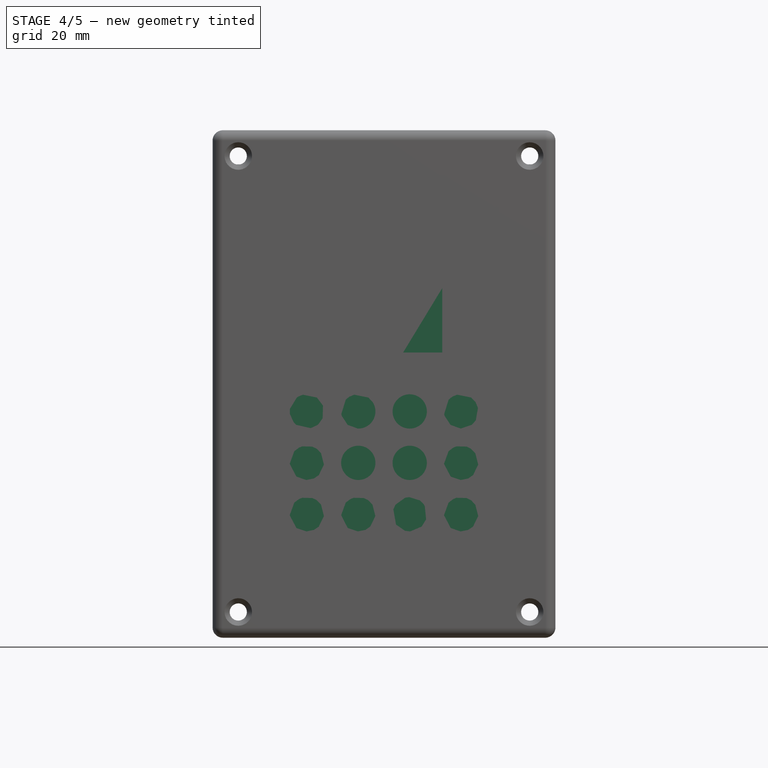
[diagram: stage 4 of 5 — front view after this stage's code; geometry added in this stage tinted green]
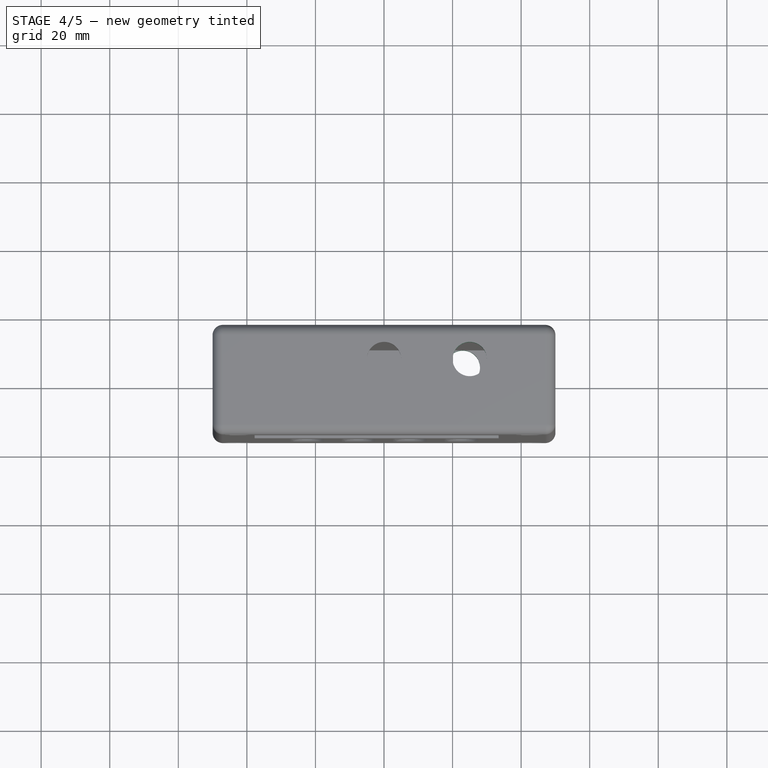
[diagram: stage 4 of 5 — top view after this stage's code; geometry added in this stage tinted green]
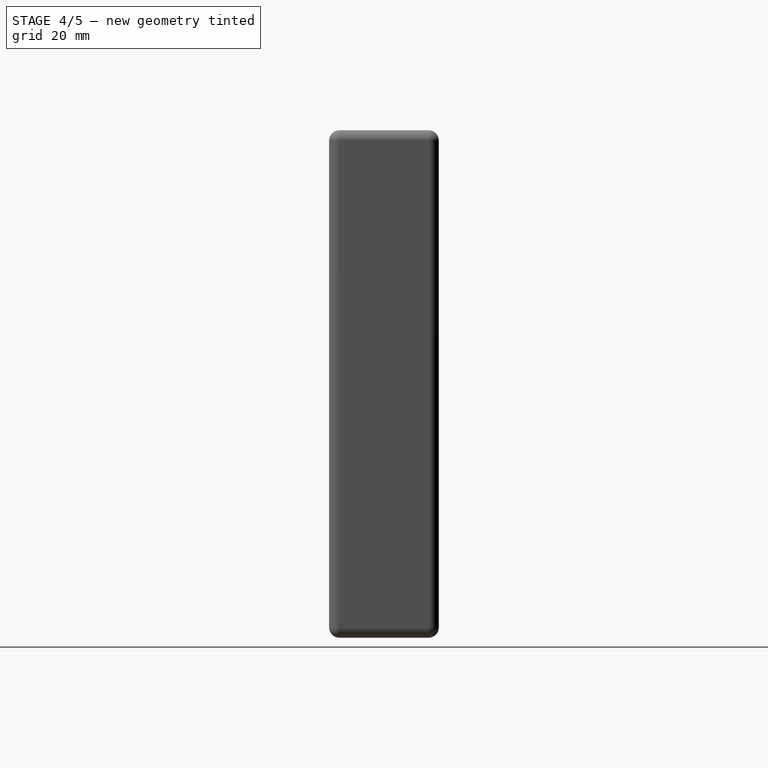
[diagram: stage 4 of 5 — right view after this stage's code; geometry added in this stage tinted green]
FEATURE [PartDesign::Body] Body006  label="Mixer"
  Group = -> [Sketch016,Pad006]
  Origin = -> Origin006
  Placement = pos=(-1,11,10) rot=(0,0,1;0rad)
  Tip = -> Pad006
FEATURE [Sketcher::SketchObject] Sketch017
  FullyConstrained = true
  MapMode = 5
  Placement = pos=(0,0,0) rot=(1,0,0;1.5708rad)
  Support = -> [XZ_Plane007]
  sketch-geometry (4):
    g0: LineSegment StartX=-17 StartY=28 StartZ=0 EndX=17 EndY=28 EndZ=0
    g1: LineSegment StartX=17 StartY=28 StartZ=0 EndX=17 EndY=-28 EndZ=0
    g2: LineSegment StartX=17 StartY=-28 StartZ=0 EndX=-17 EndY=-28 EndZ=0
    g3: LineSegment StartX=-17 StartY=-28 StartZ=0 EndX=-17 EndY=28 EndZ=0
  constraints (12):
    c: Coincident(g0,g1)
    c: Coincident(g1,g2)
    c: Coincident(g2,g3)
    c: Coincident(g3,g0)
    c: Horizontal(g0)
    c: Horizontal(g2)
    c: Vertical(g1)
    c: Vertical(g3)
    c: Symmetric(g0,g2,g-1)
    c: Symmetric(g0,g1,g-1)
    c: DistanceX(g-1,g0) = 17
    c: DistanceY(g1,g-1) = 28
FEATURE [PartDesign::Pad] Pad007
  Direction = (1,1,1)
  Length = 15
  Length2 = 100
  Placement = pos=(0,0,0) rot=(1,0,0;1.5708rad)
  Profile = -> Sketch017
  Type = 0
FEATURE [Sketcher::SketchObject] Sketch018
  FullyConstrained = true
  MapMode = 5
  Placement = pos=(0,4.93e-14,74) rot=(0,0,1;3.14159rad)
  Support = -> [Pocket008]
  sketch-geometry (1):
    g0: Circle CenterX=-25 CenterY=-6 CenterZ=0 NormalX=0 NormalY=0 NormalZ=1 AngleXU=0 Radius=5
  constraints (3):
    c: Radius(g0) = 5
    c: DistanceY(g0,g-1) = 6
    c: DistanceX(g0,g-1) = 25
FEATURE [PartDesign::Pocket] Pocket009
  BaseFeature = -> Pocket008
  Length = 5
  Length2 = 100
  Placement = pos=(0,0,0) rot=(1,0,0;1.5708rad)
  Profile = -> Sketch018
  Type = 0
FEATURE [PartDesign::Body] Body008  label="Tuner"
  Group = -> [Sketch019,Pad008]
  Origin = -> Origin008
  Placement = pos=(0,0,69) rot=(0,0,1;0rad)
  Tip = -> Pad008
FEATURE [Sketcher::SketchObject] Sketch021
  FullyConstrained = true
  MapMode = 5
  Placement = pos=(0,0,0) rot=(1,0,0;1.5708rad)
  Support = -> [XZ_Plane009]
  sketch-geometry (4):
    g0: LineSegment StartX=-32.5 StartY=2 StartZ=0 EndX=32.5 EndY=2 EndZ=0
    g1: LineSegment StartX=32.5 StartY=2 StartZ=0 EndX=32.5 EndY=-48 EndZ=0
    g2: LineSegment StartX=32.5 StartY=-48 StartZ=0 EndX=-32.5 EndY=-48 EndZ=0
    g3: LineSegment StartX=-32.5 StartY=-48 StartZ=0 EndX=-32.5 EndY=2 EndZ=0
  constraints (12):
    c: Coincident(g0,g1)
    c: Coincident(g1,g2)
    c: Coincident(g2,g3)
    c: Coincident(g3,g0)
    c: Horizontal(g0)
    c: Horizontal(g2)
    c: Vertical(g1)
    c: Vertical(g3)
    c: DistanceX(g0,g0) = 65
    c: DistanceY(g1,g1) = 50
    c: DistanceY(g-1,g0) = 2
    c: DistanceX(g0,g-1) = 32.5
FEATURE [PartDesign::Pad] Pad009
  Direction = (1,1,1)
  Length = 5
  Length2 = 100
  Placement = pos=(0,0,0) rot=(1,0,0;1.5708rad)
  Profile = -> Sketch021
  Type = 0
FEATURE [Sketcher::SketchObject] Sketch022
  FullyConstrained = true
  MapMode = 5
  Placement = pos=(0,-5,2.2e-15) rot=(1,0,0;1.5708rad)
  Support = -> [Pad009]
  sketch-geometry (23):
    g0: Circle CenterX=-22.5 CenterY=-8 CenterZ=0 NormalX=0 NormalY=0 NormalZ=1 AngleXU=0 Radius=5
    g1: Circle CenterX=-7.5 CenterY=-8 CenterZ=0 NormalX=0 NormalY=0 NormalZ=1 AngleXU=0 Radius=5
    g2: LineSegment StartX=-22.5 StartY=-8 StartZ=0 EndX=-7.5 EndY=-8 EndZ=0
    g3: Circle CenterX=7.5 CenterY=-8 CenterZ=0 NormalX=0 NormalY=0 NormalZ=1 AngleXU=0 Radius=5
    g4: LineSegment StartX=-7.5 StartY=-8 StartZ=0 EndX=7.5 EndY=-8 EndZ=0
    g5: Circle CenterX=22.5 CenterY=-8 CenterZ=0 NormalX=0 NormalY=0 NormalZ=1 AngleXU=0 Radius=5
    g6: LineSegment StartX=7.5 StartY=-8 StartZ=0 EndX=22.5 EndY=-8 EndZ=0
    g7: Circle CenterX=-22.5 CenterY=-23 CenterZ=0 NormalX=0 NormalY=0 NormalZ=1 AngleXU=0 Radius=5
    g8: LineSegment StartX=-22.5 StartY=-8 StartZ=0 EndX=-22.5 EndY=-23 EndZ=0
    g9: Circle CenterX=-7.5 CenterY=-23 CenterZ=0 NormalX=0 NormalY=0 NormalZ=1 AngleXU=0 Radius=5
    g10: LineSegment StartX=-22.5 StartY=-23 StartZ=0 EndX=-7.5 EndY=-23 EndZ=0
    g11: Circle CenterX=7.5 CenterY=-23 CenterZ=0 NormalX=0 NormalY=0 NormalZ=1 AngleXU=0 Radius=5
    g12: LineSegment StartX=-7.5 StartY=-23 StartZ=0 EndX=7.5 EndY=-23 EndZ=0
    g13: Circle CenterX=22.5 CenterY=-23 CenterZ=0 NormalX=0 NormalY=0 NormalZ=1 AngleXU=0 Radius=5
    g14: LineSegment StartX=7.5 StartY=-23 StartZ=0 EndX=22.5 EndY=-23 EndZ=0
    g15: Circle CenterX=-22.5 CenterY=-38 CenterZ=0 NormalX=0 NormalY=0 NormalZ=1 AngleXU=0 Radius=5
    g16: LineSegment StartX=-22.5 StartY=-23 StartZ=0 EndX=-22.5 EndY=-38 EndZ=0
    g17: Circle CenterX=-7.5 CenterY=-38 CenterZ=0 NormalX=0 NormalY=0 NormalZ=1 AngleXU=0 Radius=5
    g18: LineSegment StartX=-22.5 StartY=-38 StartZ=0 EndX=-7.5 EndY=-38 EndZ=0
    g19: Circle CenterX=7.5 CenterY=-38 CenterZ=0 NormalX=0 NormalY=0 NormalZ=1 AngleXU=0 Radius=5
    g20: LineSegment StartX=-7.5 StartY=-38 StartZ=0 EndX=7.5 EndY=-38 EndZ=0
    g21: Circle CenterX=22.5 CenterY=-38 CenterZ=0 NormalX=0 NormalY=0 NormalZ=1 AngleXU=0 Radius=5
    g22: LineSegment StartX=7.5 StartY=-38 StartZ=0 EndX=22.5 EndY=-38 EndZ=0
  constraints (58):
    c: Radius(g0) = 5
    c: Equal(g0,g1) = 5
    c: Coincident(g0,g2)
    c: Coincident(g1,g2)
    c: Distance(g2) = 15
    c: Angle(g2) = 5.00887e-08
    c: Equal(g0,g3) = 5
    c: Coincident(g1,g4)
    c: Coincident(g3,g4)
    c: Equal(g2,g4)
    c: Parallel(g4,g2)
    c: Equal(g0,g5) = 5
    c: Coincident(g3,g6)
    c: Coincident(g5,g6)
    c: Equal(g2,g6)
    c: Parallel(g6,g2)
    c: Equal(g0,g7) = 5
    c: Coincident(g0,g8)
    c: Coincident(g7,g8)
    c: Equal(g8,g2)
    c: Perpendicular(g8,g2)
    c: Equal(g0,g9) = 5
    c: Coincident(g7,g10)
    c: Coincident(g9,g10)
    c: Equal(g2,g10)
    c: Parallel(g10,g2)
    c: Equal(g0,g11) = 5
    c: Coincident(g9,g12)
    c: Coincident(g11,g12)
    c: Equal(g2,g12)
    c: Parallel(g12,g2)
    c: Equal(g0,g13) = 5
    c: Coincident(g11,g14)
    c: Coincident(g13,g14)
    c: Equal(g2,g14)
    c: Parallel(g14,g2)
    c: Equal(g0,g15) = 5
    c: Coincident(g7,g16)
    c: Coincident(g15,g16)
    c: Equal(g8,g16)
    c: Perpendicular(g16,g2)
    c: Equal(g0,g17) = 5
    c: Coincident(g15,g18)
    c: Coincident(g17,g18)
    c: Equal(g2,g18)
    c: Parallel(g18,g2)
    c: Equal(g0,g19) = 5
    c: Coincident(g17,g20)
    c: Coincident(g19,g20)
    c: Equal(g2,g20)
    c: Parallel(g20,g2)
    c: Equal(g0,g21) = 5
    c: Coincident(g19,g22)
    c: Coincident(g21,g22)
    c: Equal(g2,g22)
    c: Parallel(g22,g2)
    c: DistanceY(g1,g-1) = 8
    c: DistanceX(g1,g-1) = 7.5
FEATURE [PartDesign::Pad] Pad010
  BaseFeature = -> Pad009
  Direction = (1,1,1)
  Length = 10
  Length2 = 100
  Placement = pos=(0,0,0) rot=(1,0,0;1.5708rad)
  Profile = -> Sketch022
  Type = 0
FEATURE [PartDesign::Body] Body009  label="Buttons"
  Group = -> [Sketch021,Pad009,Sketch022,Pad010]
  Origin = -> Origin009
  Placement = pos=(0,-6,0) rot=(0,0,1;0rad)
  Tip = -> Pad010
FEATURE [Sketcher::SketchObject] Sketch023
  FullyConstrained = true
  MapMode = 5
  Placement = pos=(0,-1.85e-14,-28) rot=(1,0,0;3.14159rad)
  Support = -> [Pad007]
  sketch-geometry (1):
    g0: Circle CenterX=0 CenterY=5 CenterZ=0 NormalX=0 NormalY=0 NormalZ=1 AngleXU=0 Radius=5
  constraints (3):
    c: Radius(g0) = 5
    c: Vertical(g0,g-1)
    c: DistanceY(g-1,g0) = 5
FEATURE [PartDesign::Pad] Pad011
  BaseFeature = -> Pad007
  Direction = (1,1,1)
  Length = 5
  Length2 = 100
  Placement = pos=(0,0,0) rot=(1,0,0;1.5708rad)
  Profile = -> Sketch023
  Type = 0
FEATURE [PartDesign::Body] Body007  label="Power Supply"
  Group = -> [Sketch017,Pad007,Sketch023,Pad011]
  Origin = -> Origin007
  Placement = pos=(23,11,-41) rot=(0,0,1;0rad)
  Tip = -> Pad011
FEATURE [Sketcher::SketchObject] Sketch024
  FullyConstrained = true
  MapMode = 5
  Placement = pos=(0,-5.75e-14,-74) rot=(1,0,0;3.14159rad)
  Support = -> [Pocket009]
  sketch-geometry (1):
    g0: Circle CenterX=23 CenterY=-6 CenterZ=0 NormalX=0 NormalY=0 NormalZ=1 AngleXU=0 Radius=5
  constraints (3):
    c: Radius(g0) = 5
    c: DistanceY(g0,g-1) = 6
    c: DistanceX(g-1,g0) = 23
FEATURE [PartDesign::Pocket] Pocket011
  BaseFeature = -> Pocket009
  Length = 5
  Length2 = 100
  Placement = pos=(0,0,0) rot=(1,0,0;1.5708rad)
  Profile = -> Sketch024
  Type = 0
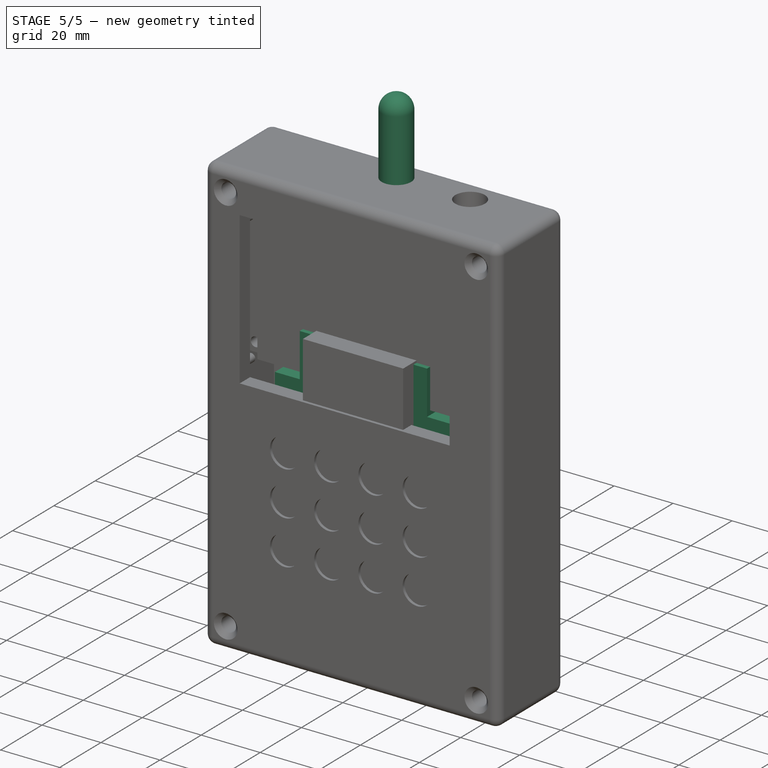
[diagram: stage 5 of 5 — iso view after this stage's code; geometry added in this stage tinted green]
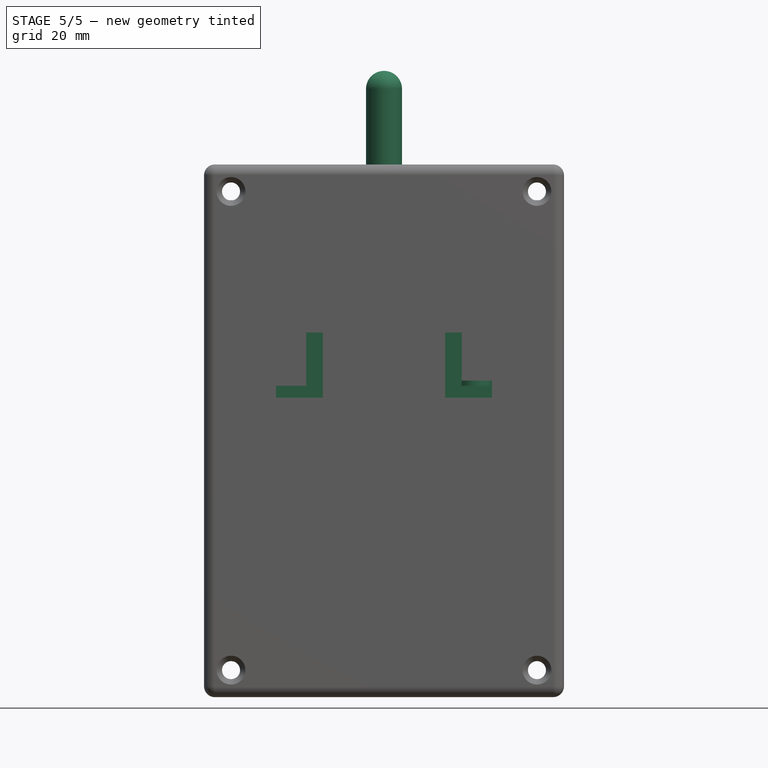
[diagram: stage 5 of 5 — front view after this stage's code; geometry added in this stage tinted green]
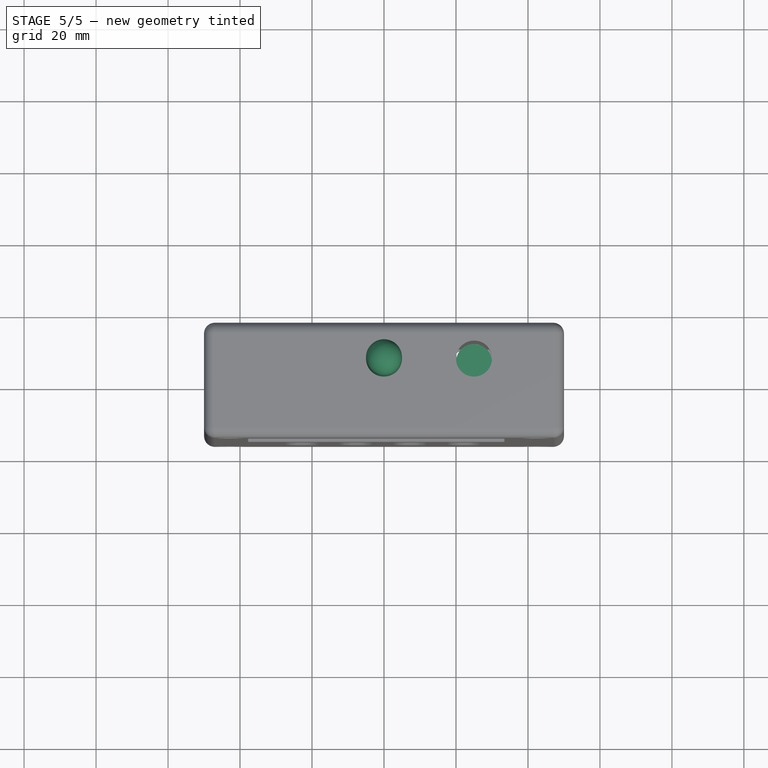
[diagram: stage 5 of 5 — top view after this stage's code; geometry added in this stage tinted green]
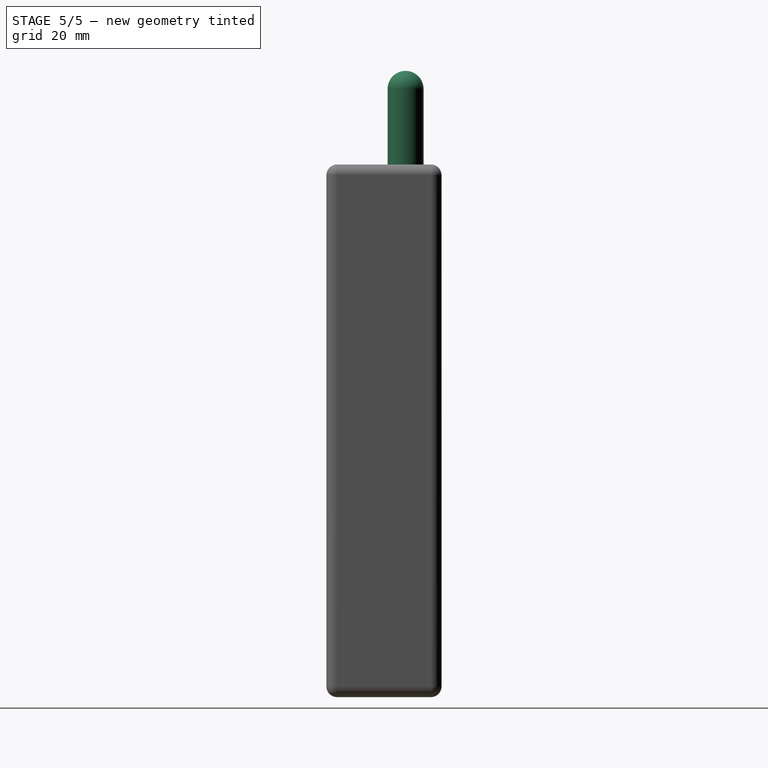
[diagram: stage 5 of 5 — right view after this stage's code; geometry added in this stage tinted green]
FEATURE [Sketcher::SketchObject] Sketch009
  FullyConstrained = true
  MapMode = 5
  Placement = pos=(0,0,0) rot=(1,0,0;1.5708rad)
  Support = -> [XZ_Plane003]
  expr: Constraints[9] = Spreadsheet.uc_mount_length
  expr: Constraints[8] = Spreadsheet.uc_mount_width
  sketch-geometry (4):
    g0: LineSegment StartX=-21.59 StartY=27.3006 StartZ=0 EndX=21.59 EndY=27.3006 EndZ=0
    g1: LineSegment StartX=21.59 StartY=27.3006 StartZ=0 EndX=21.59 EndY=-27.3006 EndZ=0
    g2: LineSegment StartX=21.59 StartY=-27.3006 StartZ=0 EndX=-21.59 EndY=-27.3006 EndZ=0
    g3: LineSegment StartX=-21.59 StartY=-27.3006 StartZ=0 EndX=-21.59 EndY=27.3006 EndZ=0
  constraints (11):
    c: Coincident(g0,g1)
    c: Coincident(g1,g2)
    c: Coincident(g2,g3)
    c: Coincident(g3,g0)
    c: Horizontal(g0)
    c: Horizontal(g2)
    c: Vertical(g1)
    c: Vertical(g3)
    c: DistanceX(g0,g0) = 43.18
    c: DistanceY(g1,g1) = 54.6011
    c: Symmetric(g0,g1,g-1)
FEATURE [PartDesign::Pad] Pad003
  Direction = (1,1,1)
  Length = 10
  Length2 = 100
  Placement = pos=(0,0,0) rot=(1,0,0;1.5708rad)
  Profile = -> Sketch009
  Type = 0
FEATURE [Sketcher::SketchObject] Sketch014
  FullyConstrained = true
  MapMode = 5
  Support = -> [XY_Plane004]
  sketch-geometry (1):
    g0: Circle CenterX=0 CenterY=6 CenterZ=0 NormalX=0 NormalY=0 NormalZ=1 AngleXU=0 Radius=5
  constraints (3):
    c: Radius(g0) = 5
    c: Vertical(g0,g-1)
    c: DistanceY(g-1,g0) = 6
FEATURE [PartDesign::Pad] Pad004
  Direction = (1,1,1)
  Length = 100
  Length2 = 100
  Profile = -> Sketch014
  Type = 0
FEATURE [PartDesign::Fillet] Fillet002
  Base = -> Pad004 [Edge3]
  BaseFeature = -> Pad004
  Radius = 5
  SupportTransform = false
FEATURE [PartDesign::Body] Body004  label="Antenna"
  Group = -> [Sketch014,Pad004,Fillet002]
  Origin = -> Origin004
  Placement = pos=(0,0,69) rot=(0,0,1;0rad)
  Tip = -> Fillet002
FEATURE [Sketcher::SketchObject] Sketch015
  FullyConstrained = true
  MapMode = 5
  Placement = pos=(0,0,0) rot=(1,0,0;1.5708rad)
  Support = -> [XZ_Plane005]
  sketch-geometry (4):
    g0: LineSegment StartX=-30 StartY=12.5 StartZ=0 EndX=30 EndY=12.5 EndZ=0
    g1: LineSegment StartX=30 StartY=12.5 StartZ=0 EndX=30 EndY=-12.5 EndZ=0
    g2: LineSegment StartX=30 StartY=-12.5 StartZ=0 EndX=-30 EndY=-12.5 EndZ=0
    g3: LineSegment StartX=-30 StartY=-12.5 StartZ=0 EndX=-30 EndY=12.5 EndZ=0
  constraints (11):
    c: Coincident(g0,g1)
    c: Coincident(g1,g2)
    c: Coincident(g2,g3)
    c: Coincident(g3,g0)
    c: Horizontal(g0)
    c: Horizontal(g2)
    c: Vertical(g1)
    c: Vertical(g3)
    c: DistanceX(g0,g0) = 60
    c: DistanceY(g1,g1) = 25
    c: Symmetric(g0,g2,g-1)
FEATURE [PartDesign::Pad] Pad005
  Direction = (1,1,1)
  Length = 10
  Length2 = 100
  Placement = pos=(0,0,0) rot=(1,0,0;1.5708rad)
  Profile = -> Sketch015
  Type = 0
FEATURE [PartDesign::Body] Body005  label="Filter"
  Group = -> [Sketch015,Pad005]
  Origin = -> Origin005
  Placement = pos=(0,11,50) rot=(0,0,1;0rad)
  Tip = -> Pad005
FEATURE [Sketcher::SketchObject] Sketch016
  FullyConstrained = true
  MapMode = 5
  Placement = pos=(0,0,0) rot=(1,0,0;1.5708rad)
  Support = -> [XZ_Plane006]
  sketch-geometry (4):
    g0: LineSegment StartX=-17.5 StartY=17.5 StartZ=0 EndX=17.5 EndY=17.5 EndZ=0
    g1: LineSegment StartX=17.5 StartY=17.5 StartZ=0 EndX=17.5 EndY=-17.5 EndZ=0
    g2: LineSegment StartX=17.5 StartY=-17.5 StartZ=0 EndX=-17.5 EndY=-17.5 EndZ=0
    g3: LineSegment StartX=-17.5 StartY=-17.5 StartZ=0 EndX=-17.5 EndY=17.5 EndZ=0
  constraints (12):
    c: Coincident(g0,g1)
    c: Coincident(g1,g2)
    c: Coincident(g2,g3)
    c: Coincident(g3,g0)
    c: Horizontal(g0)
    c: Horizontal(g2)
    c: Vertical(g1)
    c: Vertical(g3)
    c: Symmetric(g0,g2,g-1)
    c: Symmetric(g0,g1,g-1)
    c: Equal(g0,g1)
    c: DistanceY(g-1,g0) = 17.5
FEATURE [PartDesign::Pad] Pad006
  Direction = (1,1,1)
  Length = 10
  Length2 = 100
  Placement = pos=(0,0,0) rot=(1,0,0;1.5708rad)
  Profile = -> Sketch016
  Type = 0
FEATURE [Sketcher::SketchObject] Sketch019
  FullyConstrained = true
  MapMode = 5
  Support = -> [XY_Plane008]
  sketch-geometry (1):
    g0: Circle CenterX=25 CenterY=6 CenterZ=0 NormalX=0 NormalY=0 NormalZ=1 AngleXU=0 Radius=5
  constraints (3):
    c: Radius(g0) = 5
    c: DistanceY(g-1,g0) = 6
    c: DistanceX(g-1,g0) = 25
FEATURE [PartDesign::Pad] Pad008
  Direction = (1,1,1)
  Length = 20
  Length2 = 100
  Profile = -> Sketch019
  Type = 0
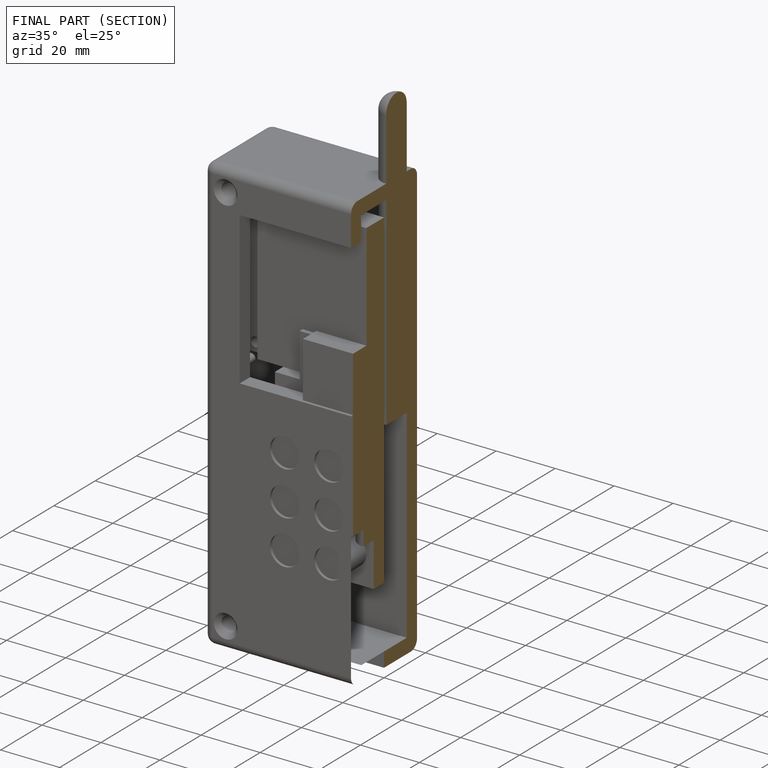
[diagram: finished part — half-section view (interior)]
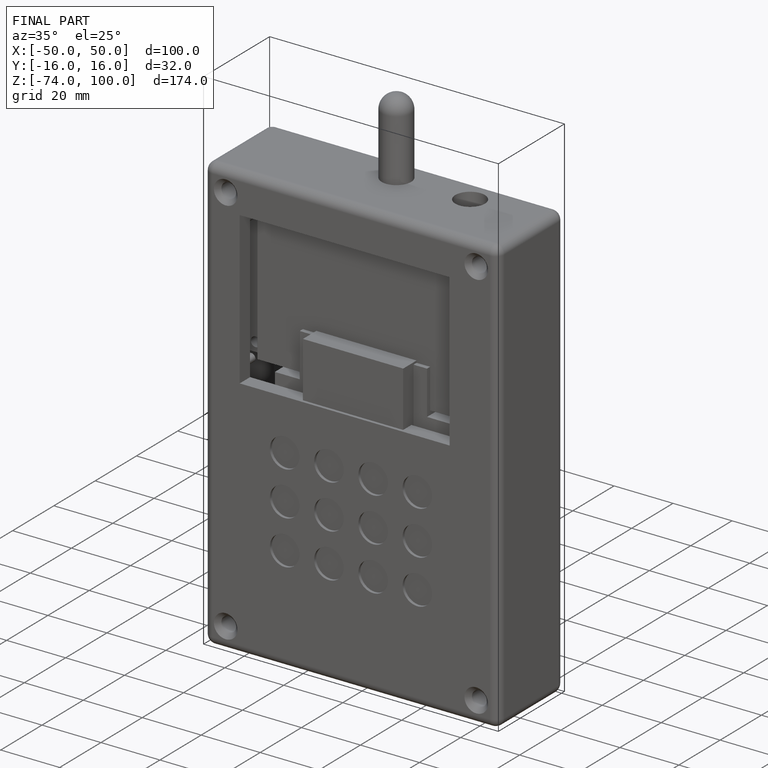
[diagram: finished part — iso view with bounding-box wireframe]
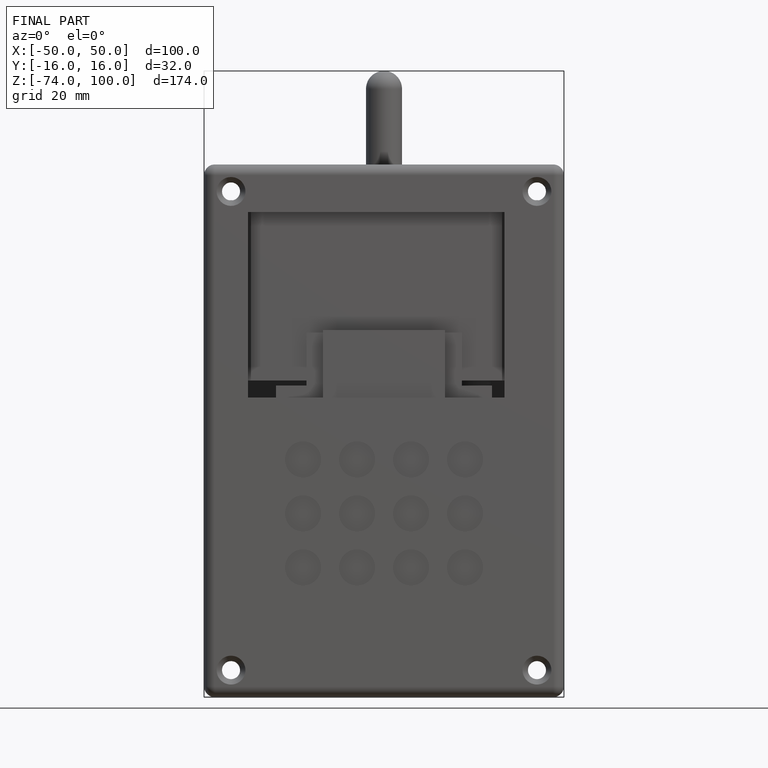
[diagram: finished part — front view with bounding-box wireframe]
